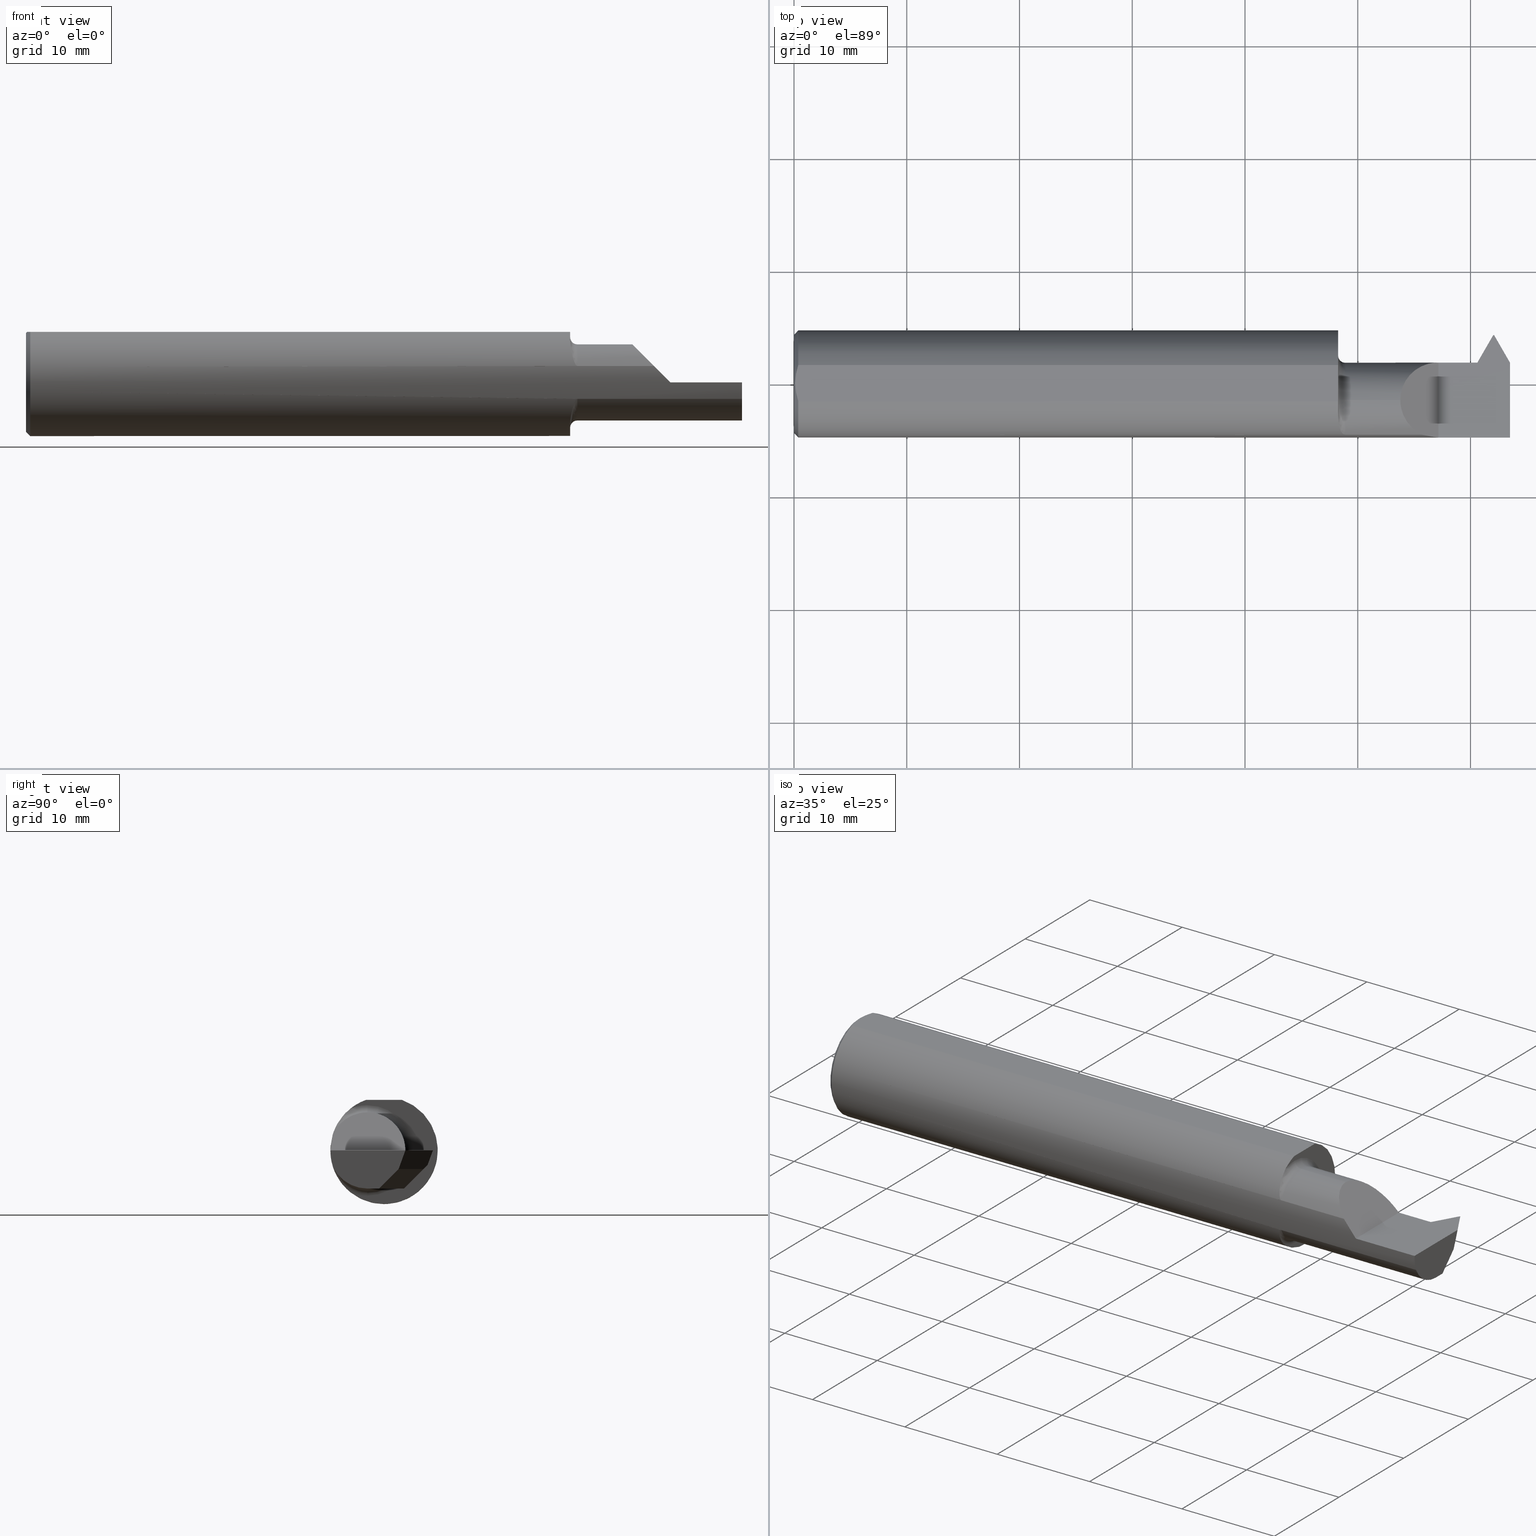
[diagram: canonical four-view strip — front | top / right | iso, engineering-drawing reading convention]
A machine part, canonical four-view strip (front | top / right | iso — engineering-drawing reading convention). The complete STEP part file that produces these views, byte-faithful:
ISO-10303-21;
HEADER;
FILE_DESCRIPTION (( 'STEP AP203' ),
    '1' );
FILE_NAME ('230424-TT360500.STEP',
    '2025-04-22T22:24:32',
    ( '' ),
    ( '' ),
    'SwSTEP 2.0',
    'SolidWorks 2024',
    '' );
FILE_SCHEMA (( 'CONFIG_CONTROL_DESIGN' ));
ENDSEC;

DATA;
#1 = PRODUCT_DEFINITION_SHAPE ( 'NONE', 'NONE',  #466 ) ;
#2 = DIRECTION ( 'NONE',  ( -1.000000000000000000, -0.000000000000000000, -0.000000000000000000 ) ) ;
#3 = AXIS2_PLACEMENT_3D ( 'NONE', #534, #743, #31 ) ;
#4 = CARTESIAN_POINT ( 'NONE',  ( 0.000000000000000000, 0.000000000000000000, 0.000000000000000000 ) ) ;
#5 = AXIS2_PLACEMENT_3D ( 'NONE', #4, #72, #299 ) ;
#6 = ORIENTED_EDGE ( 'NONE', *, *, #145, .F. ) ;
#7 = DIRECTION ( 'NONE',  ( 1.000000000000000000, 0.000000000000000000, -0.000000000000000000 ) ) ;
#8 = CALENDAR_DATE ( 2025, 22, 4 ) ;
#9 = CARTESIAN_POINT ( 'NONE',  ( 0.01500000000000093273, 0.000000000000000000, 0.000000000000000000 ) ) ;
#10 = ORIENTED_EDGE ( 'NONE', *, *, #554, .T. ) ;
#11 = DIRECTION ( 'NONE',  ( 0.000000000000000000, -0.9396926207859104263, 0.3420201433256633283 ) ) ;
#12 = ADVANCED_FACE ( 'NONE', ( #874 ), #49, .T. ) ;
#13 = APPLICATION_CONTEXT ( 'configuration controlled 3d designs of mechanical parts and assemblies' ) ;
#14 = CARTESIAN_POINT ( 'NONE',  ( 1.900000000000000133, 0.06622740117003671212, -0.04657758170750957855 ) ) ;
#15 =( BOUNDED_CURVE ( )  B_SPLINE_CURVE ( 3, ( #556, #895, #125, #472 ),
 .UNSPECIFIED., .F., .T. ) 
 B_SPLINE_CURVE_WITH_KNOTS ( ( 4, 4 ),
 ( 1.213003830136074379, 1.570796326794912545 ),
 .UNSPECIFIED. ) 
 CURVE ( )  GEOMETRIC_REPRESENTATION_ITEM ( )  RATIONAL_B_SPLINE_CURVE ( ( 1.000000000000000000, 0.9893604650975271753, 0.9893604650975271753, 1.000000000000000000 ) ) 
 REPRESENTATION_ITEM ( '' )  );
#16 = ORIENTED_EDGE ( 'NONE', *, *, #153, .T. ) ;
#17 = ORIENTED_EDGE ( 'NONE', *, *, #898, .F. ) ;
#18 = DIRECTION ( 'NONE',  ( 0.000000000000000000, 0.000000000000000000, 1.000000000000000000 ) ) ;
#19 = AXIS2_PLACEMENT_3D ( 'NONE', #620, #899, #191 ) ;
#20 = DATE_AND_TIME ( #775, #827 ) ;
#21 = DIRECTION ( 'NONE',  ( 1.000000000000000000, 0.000000000000000000, 0.000000000000000000 ) ) ;
#22 = EDGE_CURVE ( 'NONE', #57, #773, #842, .T. ) ;
#23 = VECTOR ( 'NONE', #64, 39.37007874015748143 ) ;
#24 = ORIENTED_EDGE ( 'NONE', *, *, #636, .T. ) ;
#25 = ORIENTED_EDGE ( 'NONE', *, *, #96, .T. ) ;
#26 = DIRECTION ( 'NONE',  ( 0.000000000000000000, 0.000000000000000000, 1.000000000000000000 ) ) ;
#27 = DIRECTION ( 'NONE',  ( 1.000000000000000000, -0.000000000000000000, -0.000000000000000000 ) ) ;
#28 = VERTEX_POINT ( 'NONE', #815 ) ;
#29 = ORIENTED_EDGE ( 'NONE', *, *, #621, .F. ) ;
#30 = PLANE ( 'NONE',  #228 ) ;
#31 = DIRECTION ( 'NONE',  ( 0.4999999999999942268, 0.8660254037844419273, 0.000000000000000000 ) ) ;
#32 = ORIENTED_EDGE ( 'NONE', *, *, #883, .T. ) ;
#33 = LINE ( 'NONE', #40, #595 ) ;
#34 = CARTESIAN_POINT ( 'NONE',  ( 1.912861924135776270, -0.1712588160411981919, 0.07610809679489820290 ) ) ;
#35 = AXIS2_PLACEMENT_3D ( 'NONE', #322, #251, #592 ) ;
#36 = LOCAL_TIME ( 15, 24, 32.00000000000000000, #367 ) ;
#37 = EDGE_LOOP ( 'NONE', ( #881, #495, #284, #307, #370, #807, #801, #868 ) ) ;
#38 = EDGE_CURVE ( 'NONE', #373, #599, #238, .T. ) ;
#39 = DIMENSIONAL_EXPONENTS ( 1.000000000000000000, 0.000000000000000000, 0.000000000000000000, 0.000000000000000000, 0.000000000000000000, 0.000000000000000000, 0.000000000000000000 ) ;
#40 = CARTESIAN_POINT ( 'NONE',  ( 2.376520281605562168, 0.07464999999999995250, 0.000000000000000000 ) ) ;
#41 = CARTESIAN_POINT ( 'NONE',  ( 2.401951558677191567, -0.05835000000000021420, -0.1330000000000001181 ) ) ;
#42 = EDGE_CURVE ( 'NONE', #242, #57, #150, .T. ) ;
#43 = LINE ( 'NONE', #175, #624 ) ;
#44 = CARTESIAN_POINT ( 'NONE',  ( 1.908844572613993984, -0.1652240583779467920, 0.08882027308793423448 ) ) ;
#45 = DIRECTION ( 'NONE',  ( -0.000000000000000000, 1.000000000000000000, 1.224646799147353207E-16 ) ) ;
#46 = CARTESIAN_POINT ( 'NONE',  ( 1.914331470962521431, -0.1730809661842622749, -0.07185561948439703195 ) ) ;
#47 = EDGE_LOOP ( 'NONE', ( #267, #831, #24, #578, #897, #174 ) ) ;
#48 = ADVANCED_FACE ( 'NONE', ( #180 ), #602, .F. ) ;
#49 = CONICAL_SURFACE ( 'NONE', #563, 0.1723499999999993371, 0.7853981633974391752 ) ;
#50 = CIRCLE ( 'NONE', #812, 0.1873499999999999888 ) ;
#51 = DIRECTION ( 'NONE',  ( 0.000000000000000000, 0.000000000000000000, 1.000000000000000000 ) ) ;
#52 = DIRECTION ( 'NONE',  ( 0.000000000000000000, 0.000000000000000000, 1.000000000000000000 ) ) ;
#53 = ORIENTED_EDGE ( 'NONE', *, *, #164, .F. ) ;
#54 = CARTESIAN_POINT ( 'NONE',  ( 2.153260140802780942, -0.1783697086546692234, 0.05730854678360303156 ) ) ;
#55 =( LENGTH_UNIT ( ) NAMED_UNIT ( * ) SI_UNIT ( $, .METRE. ) );
#56 = DIRECTION ( 'NONE',  ( -1.000000000000000000, -0.000000000000000000, -0.000000000000000000 ) ) ;
#57 = VERTEX_POINT ( 'NONE', #884 ) ;
#58 = DIRECTION ( 'NONE',  ( 0.001253963230750226518, 0.3420198744252536116, 0.9396918819881066032 ) ) ;
#59 = CARTESIAN_POINT ( 'NONE',  ( 2.444496156148153077, 0.1716984148925982945, 0.002880496243633760920 ) ) ;
#60 = FACE_OUTER_BOUND ( 'NONE', #846, .T. ) ;
#61 = ORIENTED_EDGE ( 'NONE', *, *, #912, .F. ) ;
#62 = AXIS2_PLACEMENT_3D ( 'NONE', #537, #766, #192 ) ;
#63 = AXIS2_PLACEMENT_3D ( 'NONE', #462, #394, #516 ) ;
#64 = DIRECTION ( 'NONE',  ( 1.000000000000000000, 0.000000000000000000, 0.000000000000000000 ) ) ;
#65 = EDGE_CURVE ( 'NONE', #392, #442, #748, .T. ) ;
#66 = CC_DESIGN_SECURITY_CLASSIFICATION ( #461, ( #341 ) ) ;
#67 = CARTESIAN_POINT ( 'NONE',  ( 1.899999999999999023, -0.1312984737625748632, -0.1350514632126308956 ) ) ;
#68 = CARTESIAN_POINT ( 'NONE',  ( 0.01155164730757385523, 0.05303705098182950189, 0.1763499999999999235 ) ) ;
#69 = EDGE_LOOP ( 'NONE', ( #564, #555 ) ) ;
#70 = CARTESIAN_POINT ( 'NONE',  ( 2.286169466321152477, -0.2688355267852827191, -0.4712870150719772888 ) ) ;
#71 = APPLICATION_PROTOCOL_DEFINITION ( 'international standard', 'config_control_design', 1994, #13 ) ;
#72 = DIRECTION ( 'NONE',  ( 1.000000000000000000, 0.000000000000000000, 0.000000000000000000 ) ) ;
#73 = EDGE_LOOP ( 'NONE', ( #480, #16, #591, #25 ) ) ;
#74 = DIRECTION ( 'NONE',  ( -1.000000000000000000, -0.000000000000000000, -0.000000000000000000 ) ) ;
#75 = DATE_TIME_ROLE ( 'creation_date' ) ;
#76 = DIRECTION ( 'NONE',  ( -1.000000000000000000, 0.000000000000000000, 3.673940397442056910E-16 ) ) ;
#77 = VERTEX_POINT ( 'NONE', #752 ) ;
#78 = EDGE_CURVE ( 'NONE', #442, #317, #391, .T. ) ;
#79 = FACE_OUTER_BOUND ( 'NONE', #437, .T. ) ;
#80 = AXIS2_PLACEMENT_3D ( 'NONE', #295, #780, #304 ) ;
#81 = DATE_AND_TIME ( #858, #187 ) ;
#82 = DIRECTION ( 'NONE',  ( -1.000000000000000000, -0.000000000000000000, -0.000000000000000000 ) ) ;
#83 = AXIS2_PLACEMENT_3D ( 'NONE', #195, #190, #686 ) ;
#84 = ORIENTED_EDGE ( 'NONE', *, *, #298, .T. ) ;
#85 = CC_DESIGN_PERSON_AND_ORGANIZATION_ASSIGNMENT ( #429, #219, ( #341 ) ) ;
#86 = PLANE ( 'NONE',  #158 ) ;
#87 = CARTESIAN_POINT ( 'NONE',  ( 1.899999999999999911, -0.05835000000000021420, 0.000000000000000000 ) ) ;
#88 = ORIENTED_EDGE ( 'NONE', *, *, #590, .F. ) ;
#89 = PRODUCT ( '230424-TT360500', '230424-TT360500', '', ( #833 ) ) ;
#90 = VERTEX_POINT ( 'NONE', #528 ) ;
#91 = PLANE ( 'NONE',  #619 ) ;
#92 = FACE_OUTER_BOUND ( 'NONE', #232, .T. ) ;
#93 = VERTEX_POINT ( 'NONE', #41 ) ;
#94 = ORIENTED_EDGE ( 'NONE', *, *, #164, .T. ) ;
#95 = CARTESIAN_POINT ( 'NONE',  ( 1.920126530293609468, -0.1772957297413640665, -0.06055838166122240462 ) ) ;
#96 = EDGE_CURVE ( 'NONE', #593, #631, #452, .T. ) ;
#97 = LINE ( 'NONE', #737, #198 ) ;
#98 = CONICAL_SURFACE ( 'NONE', #5, 0.1723499999999993371, 0.7853981633974391752 ) ;
#99 = VERTEX_POINT ( 'NONE', #677 ) ;
#100 = UNCERTAINTY_MEASURE_WITH_UNIT (LENGTH_MEASURE( 1.000000000000000082E-05 ), #683, 'distance_accuracy_value', 'NONE');
#101 = ORIENTED_EDGE ( 'NONE', *, *, #918, .T. ) ;
#102 = LINE ( 'NONE', #601, #505 ) ;
#103 = ORIENTED_EDGE ( 'NONE', *, *, #244, .F. ) ;
#104 = ORIENTED_EDGE ( 'NONE', *, *, #244, .T. ) ;
#105 = PLANE ( 'NONE',  #343 ) ;
#106 = CARTESIAN_POINT ( 'NONE',  ( 2.145120520002822495, -0.1556549305389025584, 0.1048794799971762975 ) ) ;
#107 = EDGE_CURVE ( 'NONE', #369, #373, #351, .T. ) ;
#108 = ORIENTED_EDGE ( 'NONE', *, *, #473, .T. ) ;
#109 = PLANE ( 'NONE',  #319 ) ;
#110 = AXIS2_PLACEMENT_3D ( 'NONE', #787, #2, #782 ) ;
#111 = CARTESIAN_POINT ( 'NONE',  ( 2.443000000000000504, 0.1497402467415668015, -0.06499999999999907241 ) ) ;
#112 = AXIS2_PLACEMENT_3D ( 'NONE', #332, #763, #623 ) ;
#113 = AXIS2_PLACEMENT_3D ( 'NONE', #507, #144, #708 ) ;
#114 = PRODUCT_RELATED_PRODUCT_CATEGORY ( 'detail', '', ( #89 ) ) ;
#115 = ORIENTED_EDGE ( 'NONE', *, *, #811, .F. ) ;
#116 = DIRECTION ( 'NONE',  ( 0.000000000000000000, -0.7071067811865439090, -0.7071067811865511255 ) ) ;
#117 = ORIENTED_EDGE ( 'NONE', *, *, #586, .T. ) ;
#118 = CARTESIAN_POINT ( 'NONE',  ( 0.01500000000000093273, 0.06325108694718235836, 0.1763499999999999235 ) ) ;
#119 = EDGE_CURVE ( 'NONE', #93, #348, #581, .T. ) ;
#120 = DIRECTION ( 'NONE',  ( 0.000000000000000000, 0.3401001459858907228, 0.9403892229818331394 ) ) ;
#121 = CARTESIAN_POINT ( 'NONE',  ( 1.900000000000000133, 0.07464999999999995250, 2.204364238465232864E-16 ) ) ;
#122 = ADVANCED_FACE ( 'NONE', ( #630 ), #558, .T. ) ;
#123 = DIRECTION ( 'NONE',  ( -0.4999999999999904521, 0.8660254037844440367, 0.000000000000000000 ) ) ;
#124 = AXIS2_PLACEMENT_3D ( 'NONE', #499, #648, #494 ) ;
#125 = CARTESIAN_POINT ( 'NONE',  ( 2.373636533987726782, 0.07464999999999996638, -0.01594733324062902816 ) ) ;
#126 = CARTESIAN_POINT ( 'NONE',  ( 1.899999999999999911, -0.1160303770351322067, -0.1470951192429071075 ) ) ;
#127 = CARTESIAN_POINT ( 'NONE',  ( 2.441433277957658632, 0.1524514882866901677, -0.05000000000000000971 ) ) ;
#128 = EDGE_LOOP ( 'NONE', ( #460, #131, #10, #500 ) ) ;
#129 = FACE_OUTER_BOUND ( 'NONE', #293, .T. ) ;
#130 = DIRECTION ( 'NONE',  ( -1.000000000000000000, -0.000000000000000000, -0.000000000000000000 ) ) ;
#131 = ORIENTED_EDGE ( 'NONE', *, *, #600, .T. ) ;
#132 = ADVANCED_FACE ( 'NONE', ( #838 ), #211, .F. ) ;
#133 = LINE ( 'NONE', #413, #506 ) ;
#134 = LINE ( 'NONE', #59, #876 ) ;
#135 = DIRECTION ( 'NONE',  ( -1.000000000000000000, -0.000000000000000000, -0.000000000000000000 ) ) ;
#136 = ORIENTED_EDGE ( 'NONE', *, *, #393, .F. ) ;
#137 = AXIS2_PLACEMENT_3D ( 'NONE', #637, #18, #7 ) ;
#138 = VECTOR ( 'NONE', #869, 39.37007874015748143 ) ;
#139 = DIRECTION ( 'NONE',  ( 0.4999999999999942268, 0.8660254037844419273, -0.000000000000000000 ) ) ;
#140 = PERSON_AND_ORGANIZATION ( #268, #261 ) ;
#141 = FACE_BOUND ( 'NONE', #69, .T. ) ;
#142 = ORIENTED_EDGE ( 'NONE', *, *, #119, .T. ) ;
#143 = DESIGN_CONTEXT ( 'detailed design', #13, 'design' ) ;
#144 = DIRECTION ( 'NONE',  ( -0.7745966692414905097, 0.4472135954999516549, -0.4472135954999520435 ) ) ;
#145 = EDGE_CURVE ( 'NONE', #599, #773, #422, .T. ) ;
#146 = DATE_AND_TIME ( #837, #36 ) ;
#147 = DIRECTION ( 'NONE',  ( 0.000000000000000000, 0.000000000000000000, -1.000000000000000000 ) ) ;
#148 = ORIENTED_EDGE ( 'NONE', *, *, #65, .T. ) ;
#149 = PLANE ( 'NONE',  #137 ) ;
#150 = B_SPLINE_CURVE_WITH_KNOTS ( 'NONE', 3,
 ( #458, #803, #674, #455, #325, #669, #44, #34, #241, #739, #258, #598, #252, #173, #806, #604 ),
 .UNSPECIFIED., .F., .F.,
 ( 4, 2, 2, 2, 2, 2, 2, 4 ),
 ( 0.0004765446698425022357, 0.001211022660623638442, 0.001945500651404774703, 0.002679978642185911180, 0.003047217637576483430, 0.003230837135271765002, 0.003322646884119405571, 0.003414456632967046140 ),
 .UNSPECIFIED. ) ;
#151 = APPROVAL_DATE_TIME ( #20, #871 ) ;
#152 = CARTESIAN_POINT ( 'NONE',  ( 1.899999999999999911, 0.000000000000000000, 0.000000000000000000 ) ) ;
#153 = EDGE_CURVE ( 'NONE', #839, #216, #487, .T. ) ;
#154 = EDGE_LOOP ( 'NONE', ( #504, #104 ) ) ;
#155 = CARTESIAN_POINT ( 'NONE',  ( 1.924999999999999822, -0.05835000000000021420, 0.1330000000000002014 ) ) ;
#156 = APPROVAL_STATUS ( 'not_yet_approved' ) ;
#157 = CARTESIAN_POINT ( 'NONE',  ( 2.435905081998071875, 0.1524514882866980503, -0.04999999999999214795 ) ) ;
#158 = AXIS2_PLACEMENT_3D ( 'NONE', #366, #11, #309 ) ;
#159 = ORIENTED_EDGE ( 'NONE', *, *, #689, .T. ) ;
#160 = DIRECTION ( 'NONE',  ( 0.2521791579305265874, 0.6842534882283906050, 0.6842534882283977105 ) ) ;
#161 = PERSON_AND_ORGANIZATION_ROLE ( 'classification_officer' ) ;
#162 = CARTESIAN_POINT ( 'NONE',  ( 2.500000000000000000, -0.2500000000000000555, 0.000000000000000000 ) ) ;
#163 = ORIENTED_EDGE ( 'NONE', *, *, #107, .F. ) ;
#164 = EDGE_CURVE ( 'NONE', #237, #667, #911, .T. ) ;
#165 = ORIENTED_EDGE ( 'NONE', *, *, #22, .T. ) ;
#166 = CYLINDRICAL_SURFACE ( 'NONE', #275, 0.1330000000000001736 ) ;
#167 = LINE ( 'NONE', #865, #731 ) ;
#168 = ORIENTED_EDGE ( 'NONE', *, *, #338, .F. ) ;
#169 = ORIENTED_EDGE ( 'NONE', *, *, #188, .T. ) ;
#170 = ADVANCED_FACE ( 'NONE', ( #347 ), #546, .F. ) ;
#171 = LINE ( 'NONE', #451, #418 ) ;
#172 = VECTOR ( 'NONE', #771, 39.37007874015748143 ) ;
#173 = CARTESIAN_POINT ( 'NONE',  ( 1.922655856876672065, -0.1781552959228000221, 0.05797775639604801912 ) ) ;
#174 = ORIENTED_EDGE ( 'NONE', *, *, #306, .T. ) ;
#175 = CARTESIAN_POINT ( 'NONE',  ( 2.402011550668813555, -0.06163162860215950362, -0.1330000000000000626 ) ) ;
#176 = ADVANCED_FACE ( 'NONE', ( #141, #201 ), #471, .T. ) ;
#177 = DIRECTION ( 'NONE',  ( 1.000000000000000000, 0.000000000000000000, 0.000000000000000000 ) ) ;
#178 = ORIENTED_EDGE ( 'NONE', *, *, #432, .F. ) ;
#179 = DIRECTION ( 'NONE',  ( -1.000000000000000000, -0.000000000000000000, -0.000000000000000000 ) ) ;
#180 = FACE_OUTER_BOUND ( 'NONE', #207, .T. ) ;
#181 = EDGE_CURVE ( 'NONE', #712, #417, #754, .T. ) ;
#182 = EDGE_LOOP ( 'NONE', ( #732, #302, #635, #6, #117, #675, #670, #136 ) ) ;
#183 = DIRECTION ( 'NONE',  ( 0.1005834662396463408, 0.000000000000000000, -0.9949286237309779013 ) ) ;
#184 = AXIS2_PLACEMENT_3D ( 'NONE', #906, #278, #612 ) ;
#185 = CARTESIAN_POINT ( 'NONE',  ( 2.392860499994019730, 0.06289608526510648279, -0.06499999999999907241 ) ) ;
#186 = CIRCLE ( 'NONE', #124, 0.1723499999999993371 ) ;
#187 = LOCAL_TIME ( 15, 24, 32.00000000000000000, #853 ) ;
#188 = EDGE_CURVE ( 'NONE', #369, #701, #266, .T. ) ;
#189 = DIRECTION ( 'NONE',  ( 1.000000000000000000, 0.000000000000000000, 0.000000000000000000 ) ) ;
#190 = DIRECTION ( 'NONE',  ( 1.000000000000000000, 0.000000000000000000, 0.000000000000000000 ) ) ;
#191 = DIRECTION ( 'NONE',  ( 0.000000000000000000, 0.000000000000000000, -1.000000000000000000 ) ) ;
#192 = DIRECTION ( 'NONE',  ( 0.000000000000000000, 0.000000000000000000, 1.000000000000000000 ) ) ;
#193 = DIRECTION ( 'NONE',  ( 0.000000000000000000, 0.000000000000000000, 1.000000000000000000 ) ) ;
#194 = CARTESIAN_POINT ( 'NONE',  ( 2.500000000000000000, 0.000000000000000000, 0.000000000000000000 ) ) ;
#195 = CARTESIAN_POINT ( 'NONE',  ( 2.500000000000000000, -0.05835000000000021420, 0.000000000000000000 ) ) ;
#196 = CARTESIAN_POINT ( 'NONE',  ( 0.004000000000000582083, 2.550090563692220756E-17, 0.1763499999999999235 ) ) ;
#197 = EDGE_LOOP ( 'NONE', ( #824, #785, #61, #225, #594 ) ) ;
#198 = VECTOR ( 'NONE', #660, 39.37007874015748143 ) ;
#199 = APPROVAL_PERSON_ORGANIZATION ( #350, #887, #709 ) ;
#200 = LINE ( 'NONE', #818, #891 ) ;
#201 = FACE_OUTER_BOUND ( 'NONE', #182, .T. ) ;
#202 = EDGE_CURVE ( 'NONE', #221, #773, #303, .T. ) ;
#203 = VERTEX_POINT ( 'NONE', #613 ) ;
#204 = CARTESIAN_POINT ( 'NONE',  ( 0.01500000000000093273, -0.06325108694718235836, 0.1763499999999999235 ) ) ;
#205 = CARTESIAN_POINT ( 'NONE',  ( 1.917141984682262823, -0.1755174329696185531, -0.06556455082928973332 ) ) ;
#206 = CARTESIAN_POINT ( 'NONE',  ( 2.400729010473273917, 0.008524745195061259051, -0.1330000000000003402 ) ) ;
#207 = EDGE_LOOP ( 'NONE', ( #781, #730, #870, #835, #29, #427 ) ) ;
#208 = EDGE_CURVE ( 'NONE', #242, #221, #671, .T. ) ;
#209 = CARTESIAN_POINT ( 'NONE',  ( 2.441500000000000004, 0.1706500000000000239, 0.000000000000000000 ) ) ;
#210 = APPROVAL_DATE_TIME ( #356, #438 ) ;
#211 = PLANE ( 'NONE',  #377 ) ;
#212 = ORIENTED_EDGE ( 'NONE', *, *, #421, .F. ) ;
#213 = CIRCLE ( 'NONE', #80, 0.1330000000000001736 ) ;
#214 = CARTESIAN_POINT ( 'NONE',  ( 2.392860499994019730, 0.02163535140251696479, -0.1062607338625885661 ) ) ;
#215 = CARTESIAN_POINT ( 'NONE',  ( 2.392860499994019730, 0.06289608526510648279, -0.06499999999999907241 ) ) ;
#216 = VERTEX_POINT ( 'NONE', #206 ) ;
#217 = FACE_OUTER_BOUND ( 'NONE', #73, .T. ) ;
#218 = ADVANCED_FACE ( 'NONE', ( #60 ), #538, .T. ) ;
#219 = PERSON_AND_ORGANIZATION_ROLE ( 'creator' ) ;
#220 = CARTESIAN_POINT ( 'NONE',  ( 2.250000000000000000, -0.1873499999999999888, 9.184850993605143507E-17 ) ) ;
#221 = VERTEX_POINT ( 'NONE', #767 ) ;
#222 = CARTESIAN_POINT ( 'NONE',  ( 0.004000000000000543052, -0.01077599264701415219, 0.1763499999999999235 ) ) ;
#223 = COORDINATED_UNIVERSAL_TIME_OFFSET ( 8, 0, .BEHIND. ) ;
#224 = CARTESIAN_POINT ( 'NONE',  ( 2.581520281605562683, -0.05835000000000004766, -0.1330000000000000626 ) ) ;
#225 = ORIENTED_EDGE ( 'NONE', *, *, #338, .T. ) ;
#226 = VECTOR ( 'NONE', #910, 39.37007874015748143 ) ;
#227 = CARTESIAN_POINT ( 'NONE',  ( 2.500000000000000000, -0.1873499999999999888, 0.000000000000000000 ) ) ;
#228 = AXIS2_PLACEMENT_3D ( 'NONE', #457, #189, #597 ) ;
#229 = APPROVAL_ROLE ( '' ) ;
#230 = CARTESIAN_POINT ( 'NONE',  ( 2.386074374157796996, 0.07464999999999995250, 0.000000000000000000 ) ) ;
#231 = VECTOR ( 'NONE', #269, 39.37007874015748143 ) ;
#232 = EDGE_LOOP ( 'NONE', ( #614, #115 ) ) ;
#233 = EDGE_CURVE ( 'NONE', #448, #667, #553, .T. ) ;
#234 = VERTEX_POINT ( 'NONE', #127 ) ;
#235 = CARTESIAN_POINT ( 'NONE',  ( 1.920855552425395629, -0.1776175334603398159, -0.05960499283470922088 ) ) ;
#236 = DIRECTION ( 'NONE',  ( -0.1021978390768677192, 0.1770118497048815687, 0.9788883525469465052 ) ) ;
#237 = VERTEX_POINT ( 'NONE', #406 ) ;
#238 =( BOUNDED_CURVE ( )  B_SPLINE_CURVE ( 3, ( #879, #106, #799, #386 ),
 .UNSPECIFIED., .F., .F. ) 
 B_SPLINE_CURVE_WITH_KNOTS ( ( 4, 4 ),
 ( 5.157869252308511676, 6.283185307179586232 ),
 .UNSPECIFIED. ) 
 CURVE ( )  GEOMETRIC_REPRESENTATION_ITEM ( )  RATIONAL_B_SPLINE_CURVE ( ( 1.000000000000000000, 0.8972268081433718567, 0.8972268081433718567, 1.000000000000000000 ) ) 
 REPRESENTATION_ITEM ( '' )  );
#239 = ORIENTED_EDGE ( 'NONE', *, *, #145, .T. ) ;
#240 = FACE_OUTER_BOUND ( 'NONE', #358, .T. ) ;
#241 = CARTESIAN_POINT ( 'NONE',  ( 1.914343418362562943, -0.1730952584121424886, 0.07182162584496383506 ) ) ;
#242 = VERTEX_POINT ( 'NONE', #687 ) ;
#243 = MANIFOLD_SOLID_BREP ( 'Cut-Sweep1', #889 ) ;
#244 = EDGE_CURVE ( 'NONE', #203, #582, #186, .T. ) ;
#245 = CYLINDRICAL_SURFACE ( 'NONE', #63, 0.1873499999999999888 ) ;
#246 = AXIS2_PLACEMENT_3D ( 'NONE', #215, #776, #854 ) ;
#247 = VECTOR ( 'NONE', #323, 39.37007874015748854 ) ;
#248 = CARTESIAN_POINT ( 'NONE',  ( 1.924999999999999822, -0.05835000000000021420, 0.000000000000000000 ) ) ;
#249 = EDGE_LOOP ( 'NONE', ( #706, #212 ) ) ;
#250 = CC_DESIGN_PERSON_AND_ORGANIZATION_ASSIGNMENT ( #647, #161, ( #461 ) ) ;
#251 = DIRECTION ( 'NONE',  ( 1.000000000000000000, 0.000000000000000000, 0.000000000000000000 ) ) ;
#252 = CARTESIAN_POINT ( 'NONE',  ( 1.920882408083212312, -0.1776276410483813295, 0.05957475000071229404 ) ) ;
#253 = ORIENTED_EDGE ( 'NONE', *, *, #734, .T. ) ;
#254 = CARTESIAN_POINT ( 'NONE',  ( 2.444500000000000117, 0.1706500000000000239, 0.000000000000000000 ) ) ;
#255 = ORIENTED_EDGE ( 'NONE', *, *, #586, .F. ) ;
#256 = CARTESIAN_POINT ( 'NONE',  ( 2.403041904254465067, -2.304124319519293529, 0.2623169197180995060 ) ) ;
#257 = AXIS2_PLACEMENT_3D ( 'NONE', #424, #702, #492 ) ;
#258 = CARTESIAN_POINT ( 'NONE',  ( 1.918195961774044278, -0.1762973784583231618, 0.06343092843761441446 ) ) ;
#259 = VECTOR ( 'NONE', #123, 39.37007874015748854 ) ;
#260 = EDGE_CURVE ( 'NONE', #618, #688, #890, .T. ) ;
#261 = ORGANIZATION ( 'UNSPECIFIED', 'UNSPECIFIED', '' ) ;
#262 = CARTESIAN_POINT ( 'NONE',  ( 2.376520281605562168, 0.07464999999999995250, 0.000000000000000000 ) ) ;
#263 = DIRECTION ( 'NONE',  ( -1.000000000000000000, 0.000000000000000000, -0.000000000000000000 ) ) ;
#264 = FACE_OUTER_BOUND ( 'NONE', #154, .T. ) ;
#265 = PERSON_AND_ORGANIZATION ( #268, #261 ) ;
#266 = LINE ( 'NONE', #692, #800 ) ;
#267 = ORIENTED_EDGE ( 'NONE', *, *, #277, .T. ) ;
#268 = PERSON ( 'UNSPECIFIED', 'UNSPECIFIED', 'UNSPECIFIED', ('UNSPECIFIED'), ('UNSPECIFIED'), ('UNSPECIFIED') ) ;
#269 = DIRECTION ( 'NONE',  ( 1.000000000000000000, 0.000000000000000000, 0.000000000000000000 ) ) ;
#270 = EDGE_CURVE ( 'NONE', #543, #855, #213, .T. ) ;
#271 = CARTESIAN_POINT ( 'NONE',  ( 1.899999999999999911, -0.06325108694718235836, 0.1763499999999999235 ) ) ;
#272 = CARTESIAN_POINT ( 'NONE',  ( 0.000000000000000000, 0.06325108694718235836, 0.1763499999999999235 ) ) ;
#273 = ORIENTED_EDGE ( 'NONE', *, *, #791, .T. ) ;
#274 = AXIS2_PLACEMENT_3D ( 'NONE', #483, #819, #759 ) ;
#275 = AXIS2_PLACEMENT_3D ( 'NONE', #793, #376, #26 ) ;
#276 = DIRECTION ( 'NONE',  ( 0.4999999999999948375, -0.8660254037844417052, 0.000000000000000000 ) ) ;
#277 = EDGE_CURVE ( 'NONE', #886, #237, #50, .T. ) ;
#278 = DIRECTION ( 'NONE',  ( 0.000000000000000000, 0.000000000000000000, 1.000000000000000000 ) ) ;
#279 = CARTESIAN_POINT ( 'NONE',  ( 1.900000000000000133, -0.05835000000000021420, 0.000000000000000000 ) ) ;
#280 = ORIENTED_EDGE ( 'NONE', *, *, #260, .T. ) ;
#281 = DIRECTION ( 'NONE',  ( -0.9840406976462907629, 2.800260005780207365E-15, 0.1779435454738421685 ) ) ;
#282 = CARTESIAN_POINT ( 'NONE',  ( -3.937007874019685528E-05, 0.1524514882866901955, -0.05000000000000000278 ) ) ;
#283 = CARTESIAN_POINT ( 'NONE',  ( 2.401951558677191567, -0.05835000000000021420, -0.1330000000000001181 ) ) ;
#284 = ORIENTED_EDGE ( 'NONE', *, *, #610, .F. ) ;
#285 = ADVANCED_FACE ( 'NONE', ( #357 ), #98, .T. ) ;
#286 = FACE_OUTER_BOUND ( 'NONE', #407, .T. ) ;
#287 = CARTESIAN_POINT ( 'NONE',  ( 2.153260140802780942, -0.1783697086546692234, -0.05730854678360303156 ) ) ;
#288 = ORIENTED_EDGE ( 'NONE', *, *, #233, .T. ) ;
#289 = EDGE_CURVE ( 'NONE', #348, #337, #167, .T. ) ;
#290 = VECTOR ( 'NONE', #907, 39.37007874015748143 ) ;
#291 = CARTESIAN_POINT ( 'NONE',  ( 2.289103641135900258, 0.5742791931371846736, 0.3718277048504986526 ) ) ;
#292 = DIRECTION ( 'NONE',  ( -1.000000000000000000, -0.000000000000000000, -0.000000000000000000 ) ) ;
#293 = EDGE_LOOP ( 'NONE', ( #559, #587, #447, #768 ) ) ;
#294 = CARTESIAN_POINT ( 'NONE',  ( 2.500000000000000000, -0.1783697086546688626, -0.05730854678360295523 ) ) ;
#295 = CARTESIAN_POINT ( 'NONE',  ( 2.392860499994019730, -0.05835000000000021420, 0.000000000000000000 ) ) ;
#296 = ORIENTED_EDGE ( 'NONE', *, *, #208, .F. ) ;
#297 = LINE ( 'NONE', #70, #320 ) ;
#298 = EDGE_CURVE ( 'NONE', #618, #908, #639, .T. ) ;
#299 = DIRECTION ( 'NONE',  ( 0.000000000000000000, 0.000000000000000000, -1.000000000000000000 ) ) ;
#300 = ORIENTED_EDGE ( 'NONE', *, *, #396, .F. ) ;
#301 = AXIS2_PLACEMENT_3D ( 'NONE', #262, #281, #469 ) ;
#302 = ORIENTED_EDGE ( 'NONE', *, *, #459, .T. ) ;
#303 = CIRCLE ( 'NONE', #112, 0.02499999999999993894 ) ;
#304 = DIRECTION ( 'NONE',  ( 0.000000000000000000, 1.065523418581454723E-14, -1.000000000000000000 ) ) ;
#305 = AXIS2_PLACEMENT_3D ( 'NONE', #690, #45, #607 ) ;
#306 = EDGE_CURVE ( 'NONE', #28, #886, #641, .T. ) ;
#307 = ORIENTED_EDGE ( 'NONE', *, *, #571, .F. ) ;
#308 = ORIENTED_EDGE ( 'NONE', *, *, #497, .T. ) ;
#309 = DIRECTION ( 'NONE',  ( 0.000000000000000000, -0.3420201433256632728, -0.9396926207859103153 ) ) ;
#310 = LINE ( 'NONE', #588, #138 ) ;
#311 = ORIENTED_EDGE ( 'NONE', *, *, #298, .F. ) ;
#312 = EDGE_CURVE ( 'NONE', #543, #855, #446, .T. ) ;
#313 = ORIENTED_EDGE ( 'NONE', *, *, #491, .T. ) ;
#314 = DIRECTION ( 'NONE',  ( 0.000000000000000000, -0.7071067811865511255, 0.7071067811865439090 ) ) ;
#315 = CARTESIAN_POINT ( 'NONE',  ( 0.000000000000000000, 0.000000000000000000, 0.000000000000000000 ) ) ;
#316 = ADVANCED_FACE ( 'NONE', ( #92 ), #844, .T. ) ;
#317 = VERTEX_POINT ( 'NONE', #794 ) ;
#318 = CARTESIAN_POINT ( 'NONE',  ( 0.000000000000000000, 0.000000000000000000, -0.1723499999999993371 ) ) ;
#319 = AXIS2_PLACEMENT_3D ( 'NONE', #668, #314, #116 ) ;
#320 = VECTOR ( 'NONE', #160, 39.37007874015748854 ) ;
#321 = VERTEX_POINT ( 'NONE', #352 ) ;
#322 = CARTESIAN_POINT ( 'NONE',  ( 0.01500000000000093273, 0.000000000000000000, 0.000000000000000000 ) ) ;
#323 = DIRECTION ( 'NONE',  ( 0.4999999999999912292, 0.8660254037844437036, 0.000000000000000000 ) ) ;
#324 = LINE ( 'NONE', #882, #746 ) ;
#325 = CARTESIAN_POINT ( 'NONE',  ( 1.903482061302896433, -0.1498697720275259659, 0.1128244190103262073 ) ) ;
#326 = PLANE ( 'NONE',  #416 ) ;
#327 = DIRECTION ( 'NONE',  ( 0.000000000000000000, 0.000000000000000000, 1.000000000000000000 ) ) ;
#328 = ADVANCED_FACE ( 'NONE', ( #363 ), #372, .F. ) ;
#329 = VECTOR ( 'NONE', #468, 39.37007874015748854 ) ;
#330 = LINE ( 'NONE', #54, #231 ) ;
#331 =( NAMED_UNIT ( * ) PLANE_ANGLE_UNIT ( ) SI_UNIT ( $, .RADIAN. ) );
#332 = CARTESIAN_POINT ( 'NONE',  ( 1.924999999999999822, -0.05835000000000022807, 0.1580000000000001403 ) ) ;
#333 = ORIENTED_EDGE ( 'NONE', *, *, #852, .F. ) ;
#334 = EDGE_CURVE ( 'NONE', #216, #593, #634, .T. ) ;
#335 = LINE ( 'NONE', #345, #490 ) ;
#336 = DIRECTION ( 'NONE',  ( 0.000000000000000000, 0.000000000000000000, 1.000000000000000000 ) ) ;
#337 = VERTEX_POINT ( 'NONE', #849 ) ;
#338 = EDGE_CURVE ( 'NONE', #736, #663, #916, .T. ) ;
#339 = CARTESIAN_POINT ( 'NONE',  ( 1.900000000000000133, 0.1706499999999999684, 2.204364238465232864E-16 ) ) ;
#340 = CARTESIAN_POINT ( 'NONE',  ( 2.192691453216395914, -0.1783697086546688348, 0.05730854678360401688 ) ) ;
#341 = PRODUCT_DEFINITION_FORMATION_WITH_SPECIFIED_SOURCE ( 'ANY', '', #89, .NOT_KNOWN. ) ;
#342 = ORIENTED_EDGE ( 'NONE', *, *, #821, .T. ) ;
#343 = AXIS2_PLACEMENT_3D ( 'NONE', #256, #808, #183 ) ;
#344 = AXIS2_PLACEMENT_3D ( 'NONE', #616, #691, #482 ) ;
#345 = CARTESIAN_POINT ( 'NONE',  ( 2.386074374157796996, 0.07464999999999995250, 0.000000000000000000 ) ) ;
#346 = CARTESIAN_POINT ( 'NONE',  ( 1.899999999999999911, -0.1160303770351322067, -0.1470951192429071075 ) ) ;
#347 = FACE_OUTER_BOUND ( 'NONE', #569, .T. ) ;
#348 = VERTEX_POINT ( 'NONE', #584 ) ;
#349 = FACE_OUTER_BOUND ( 'NONE', #658, .T. ) ;
#350 = PERSON_AND_ORGANIZATION ( #268, #261 ) ;
#351 =( BOUNDED_CURVE ( )  B_SPLINE_CURVE ( 3, ( #517, #735, #665, #340 ),
 .UNSPECIFIED., .F., .F. ) 
 B_SPLINE_CURVE_WITH_KNOTS ( ( 4, 4 ),
 ( 4.712388980384690562, 5.023262387692875919 ),
 .UNSPECIFIED. ) 
 CURVE ( )  GEOMETRIC_REPRESENTATION_ITEM ( )  RATIONAL_B_SPLINE_CURVE ( ( 1.000000000000000000, 0.9919626788073498957, 0.9919626788073498957, 1.000000000000000000 ) ) 
 REPRESENTATION_ITEM ( '' )  );
#352 = CARTESIAN_POINT ( 'NONE',  ( 1.924999999999999822, -0.05835000000000019338, -0.1330000000000002014 ) ) ;
#353 = ORIENTED_EDGE ( 'NONE', *, *, #202, .F. ) ;
#354 = ORIENTED_EDGE ( 'NONE', *, *, #42, .T. ) ;
#355 = DIRECTION ( 'NONE',  ( 0.000000000000000000, 0.000000000000000000, 1.000000000000000000 ) ) ;
#356 = DATE_AND_TIME ( #8, #390 ) ;
#357 = FACE_OUTER_BOUND ( 'NONE', #382, .T. ) ;
#358 = EDGE_LOOP ( 'NONE', ( #381, #863, #142, #300 ) ) ;
#359 = VECTOR ( 'NONE', #436, 39.37007874015748854 ) ;
#360 = CIRCLE ( 'NONE', #62, 0.1580000000000001403 ) ;
#361 = CARTESIAN_POINT ( 'NONE',  ( 2.250000000000000000, -0.2500000000000000555, 9.184850993605143507E-17 ) ) ;
#362 = SHAPE_DEFINITION_REPRESENTATION ( #1, #632 ) ;
#363 = FACE_OUTER_BOUND ( 'NONE', #37, .T. ) ;
#364 = ORIENTED_EDGE ( 'NONE', *, *, #181, .F. ) ;
#365 = EDGE_CURVE ( 'NONE', #77, #93, #644, .T. ) ;
#366 = CARTESIAN_POINT ( 'NONE',  ( -3.937007874019685528E-05, 0.1706500000000000239, 7.347880794884115299E-17 ) ) ;
#367 = COORDINATED_UNIVERSAL_TIME_OFFSET ( 8, 0, .BEHIND. ) ;
#368 = LINE ( 'NONE', #14, #875 ) ;
#369 = VERTEX_POINT ( 'NONE', #220 ) ;
#370 = ORIENTED_EDGE ( 'NONE', *, *, #188, .F. ) ;
#371 = CARTESIAN_POINT ( 'NONE',  ( 2.394282592563504508, 0.03159656514907391300, -0.09876265669944513104 ) ) ;
#372 = PLANE ( 'NONE',  #656 ) ;
#373 = VERTEX_POINT ( 'NONE', #502 ) ;
#374 = TOROIDAL_SURFACE ( 'NONE', #344, 0.1580000000000001403, 0.02499999999999992853 ) ;
#375 = ORIENTED_EDGE ( 'NONE', *, *, #765, .T. ) ;
#376 = DIRECTION ( 'NONE',  ( -1.000000000000000000, -0.000000000000000000, -0.000000000000000000 ) ) ;
#377 = AXIS2_PLACEMENT_3D ( 'NONE', #552, #193, #415 ) ;
#378 = LINE ( 'NONE', #318, #449 ) ;
#379 = VECTOR ( 'NONE', #397, 39.37007874015748143 ) ;
#380 = EDGE_CURVE ( 'NONE', #631, #839, #710, .T. ) ;
#381 = ORIENTED_EDGE ( 'NONE', *, *, #334, .F. ) ;
#382 = EDGE_LOOP ( 'NONE', ( #877, #88, #741, #423, #342 ) ) ;
#383 = DIRECTION ( 'NONE',  ( 0.000000000000000000, -1.000000000000000000, 0.000000000000000000 ) ) ;
#384 = DIRECTION ( 'NONE',  ( -1.000000000000000000, -0.000000000000000000, -0.000000000000000000 ) ) ;
#385 = ORIENTED_EDGE ( 'NONE', *, *, #202, .T. ) ;
#386 = CARTESIAN_POINT ( 'NONE',  ( 2.116999999999998661, -0.05835000000000021420, 0.1330000000000001736 ) ) ;
#387 = ORIENTED_EDGE ( 'NONE', *, *, #107, .T. ) ;
#388 = CARTESIAN_POINT ( 'NONE',  ( 1.900000000000000133, -0.05835000000000019338, -0.1330000000000001736 ) ) ;
#389 = VECTOR ( 'NONE', #715, 39.37007874015748143 ) ;
#390 = LOCAL_TIME ( 15, 24, 32.00000000000000000, #223 ) ;
#391 = LINE ( 'NONE', #680, #845 ) ;
#392 = VERTEX_POINT ( 'NONE', #720 ) ;
#393 = EDGE_CURVE ( 'NONE', #348, #90, #368, .T. ) ;
#394 = DIRECTION ( 'NONE',  ( -1.000000000000000000, -0.000000000000000000, -0.000000000000000000 ) ) ;
#395 = ORIENTED_EDGE ( 'NONE', *, *, #153, .F. ) ;
#396 = EDGE_CURVE ( 'NONE', #593, #348, #859, .T. ) ;
#397 = DIRECTION ( 'NONE',  ( 1.000000000000000000, 0.000000000000000000, 0.000000000000000000 ) ) ;
#398 = LINE ( 'NONE', #904, #530 ) ;
#399 = CARTESIAN_POINT ( 'NONE',  ( 0.000000000000000000, 2.110678758330454820E-17, 0.1723499999999993371 ) ) ;
#400 = CARTESIAN_POINT ( 'NONE',  ( 2.400902952461864803, -0.0009900748574006746228, -0.1330000000000001459 ) ) ;
#401 = AXIS2_PLACEMENT_3D ( 'NONE', #248, #384, #465 ) ;
#402 = ADVANCED_FACE ( 'NONE', ( #789 ), #30, .T. ) ;
#403 = AXIS2_PLACEMENT_3D ( 'NONE', #9, #21, #147 ) ;
#404 = DIRECTION ( 'NONE',  ( 0.000000000000000000, -0.9840406976462907629, 0.1779435454738421685 ) ) ;
#405 = LINE ( 'NONE', #399, #672 ) ;
#406 = CARTESIAN_POINT ( 'NONE',  ( 1.899999999999999911, 0.06325108694718235836, 0.1763499999999999235 ) ) ;
#407 = EDGE_LOOP ( 'NONE', ( #745, #589, #526, #795, #717 ) ) ;
#408 = EDGE_CURVE ( 'NONE', #582, #688, #378, .T. ) ;
#409 = CARTESIAN_POINT ( 'NONE',  ( 2.386074374157796996, 0.07464999999999995250, 0.000000000000000000 ) ) ;
#410 = CARTESIAN_POINT ( 'NONE',  ( 1.918162645443745928, -0.1762760481395244938, -0.06349063590883606556 ) ) ;
#411 = CARTESIAN_POINT ( 'NONE',  ( 1.899999999999999911, -0.05835000000000021420, 0.000000000000000000 ) ) ;
#412 = ORIENTED_EDGE ( 'NONE', *, *, #432, .T. ) ;
#413 = CARTESIAN_POINT ( 'NONE',  ( 2.500000000000000000, 0.05101335071013886335, -0.06499999999999907241 ) ) ;
#414 = CARTESIAN_POINT ( 'NONE',  ( 1.908867519642199362, -0.1652587220708481019, -0.08874743406640397958 ) ) ;
#415 = DIRECTION ( 'NONE',  ( 1.000000000000000000, 0.000000000000000000, -0.000000000000000000 ) ) ;
#416 = AXIS2_PLACEMENT_3D ( 'NONE', #409, #404, #817 ) ;
#417 = VERTEX_POINT ( 'NONE', #805 ) ;
#418 = VECTOR ( 'NONE', #383, 39.37007874015748143 ) ;
#419 = VECTOR ( 'NONE', #139, 39.37007874015748854 ) ;
#420 = DIRECTION ( 'NONE',  ( -0.7071067811865511255, 0.000000000000000000, 0.7071067811865440200 ) ) ;
#421 = EDGE_CURVE ( 'NONE', #90, #456, #33, .T. ) ;
#422 = LINE ( 'NONE', #901, #757 ) ;
#423 = ORIENTED_EDGE ( 'NONE', *, *, #260, .F. ) ;
#424 = CARTESIAN_POINT ( 'NONE',  ( 0.000000000000000000, 0.000000000000000000, 0.000000000000000000 ) ) ;
#425 = DATE_TIME_ROLE ( 'classification_date' ) ;
#426 = DIRECTION ( 'NONE',  ( -1.000000000000000000, -0.000000000000000000, -0.000000000000000000 ) ) ;
#427 = ORIENTED_EDGE ( 'NONE', *, *, #765, .F. ) ;
#428 = DIRECTION ( 'NONE',  ( 0.4999999999999948375, -0.8660254037844417052, 0.000000000000000000 ) ) ;
#429 = PERSON_AND_ORGANIZATION ( #268, #261 ) ;
#430 = DIRECTION ( 'NONE',  ( 0.000000000000000000, 0.000000000000000000, -1.000000000000000000 ) ) ;
#431 = ORIENTED_EDGE ( 'NONE', *, *, #821, .F. ) ;
#432 = EDGE_CURVE ( 'NONE', #417, #392, #97, .T. ) ;
#433 = CIRCLE ( 'NONE', #35, 0.1873499999999999888 ) ;
#434 = AXIS2_PLACEMENT_3D ( 'NONE', #194, #909, #51 ) ;
#435 = CARTESIAN_POINT ( 'NONE',  ( 0.01157250466904420454, -0.05309883057899376924, 0.1763499999999999512 ) ) ;
#436 = DIRECTION ( 'NONE',  ( 4.558778061663537107E-15, -0.7071067811865439090, -0.7071067811865511255 ) ) ;
#437 = EDGE_LOOP ( 'NONE', ( #84, #313, #94, #913, #431 ) ) ;
#438 = APPROVAL ( #156, 'UNSPECIFIED' ) ;
#439 = ORIENTED_EDGE ( 'NONE', *, *, #898, .T. ) ;
#440 = LINE ( 'NONE', #291, #770 ) ;
#441 = DIRECTION ( 'NONE',  ( 1.000000000000000000, 0.000000000000000000, 0.000000000000000000 ) ) ;
#442 = VERTEX_POINT ( 'NONE', #733 ) ;
#443 = ORIENTED_EDGE ( 'NONE', *, *, #560, .T. ) ;
#444 = CARTESIAN_POINT ( 'NONE',  ( 1.922632702519553760, -0.1781504652642085795, -0.05799271583144490622 ) ) ;
#445 = ADVANCED_FACE ( 'NONE', ( #520 ), #547, .F. ) ;
#446 = LINE ( 'NONE', #783, #784 ) ;
#447 = ORIENTED_EDGE ( 'NONE', *, *, #421, .T. ) ;
#448 = VERTEX_POINT ( 'NONE', #673 ) ;
#449 = VECTOR ( 'NONE', #747, 39.37007874015748854 ) ;
#450 = ADVANCED_FACE ( 'NONE', ( #742 ), #109, .F. ) ;
#451 = CARTESIAN_POINT ( 'NONE',  ( 2.500000000000000000, 0.000000000000000000, 0.000000000000000000 ) ) ;
#452 = LINE ( 'NONE', #185, #247 ) ;
#453 = ORIENTED_EDGE ( 'NONE', *, *, #661, .F. ) ;
#454 = DIRECTION ( 'NONE',  ( -0.01827811026638598985, 0.9998329413882549588, 0.000000000000000000 ) ) ;
#455 = CARTESIAN_POINT ( 'NONE',  ( 1.902207105173796986, -0.1438831799119798249, 0.1203810775388774040 ) ) ;
#456 = VERTEX_POINT ( 'NONE', #878 ) ;
#457 = CARTESIAN_POINT ( 'NONE',  ( 1.899999999999999911, 0.1873499999999998777, 0.000000000000000000 ) ) ;
#458 = CARTESIAN_POINT ( 'NONE',  ( 1.899999999999999911, -0.1160303770351322067, 0.1470951192429071075 ) ) ;
#459 = EDGE_CURVE ( 'NONE', #93, #321, #802, .T. ) ;
#460 = ORIENTED_EDGE ( 'NONE', *, *, #306, .F. ) ;
#461 = SECURITY_CLASSIFICATION ( '', '', #493 ) ;
#462 = CARTESIAN_POINT ( 'NONE',  ( 0.000000000000000000, 0.000000000000000000, 0.000000000000000000 ) ) ;
#463 = VECTOR ( 'NONE', #82, 39.37007874015748143 ) ;
#464 = AXIS2_PLACEMENT_3D ( 'NONE', #642, #633, #778 ) ;
#465 = DIRECTION ( 'NONE',  ( 0.000000000000000000, 0.000000000000000000, 1.000000000000000000 ) ) ;
#466 = PRODUCT_DEFINITION ( 'UNKNOWN', '', #341, #143 ) ;
#467 = CARTESIAN_POINT ( 'NONE',  ( 2.250000000000000000, 0.07464999999999995250, 2.204364238465232864E-16 ) ) ;
#468 = DIRECTION ( 'NONE',  ( 0.4999999999999905076, -0.8660254037844440367, 0.000000000000000000 ) ) ;
#469 = DIRECTION ( 'NONE',  ( 0.1779435454738421685, 0.000000000000000000, 0.9840406976462907629 ) ) ;
#470 = APPLICATION_PROTOCOL_DEFINITION ( 'international standard', 'config_control_design', 1994, #880 ) ;
#471 = CYLINDRICAL_SURFACE ( 'NONE', #682, 0.1330000000000001736 ) ;
#472 = CARTESIAN_POINT ( 'NONE',  ( 2.376520281605562168, 0.07464999999999995250, 0.000000000000000000 ) ) ;
#473 = EDGE_CURVE ( 'NONE', #688, #667, #433, .T. ) ;
#474 = DIRECTION ( 'NONE',  ( -1.000000000000000000, -0.000000000000000000, -0.000000000000000000 ) ) ;
#475 = CARTESIAN_POINT ( 'NONE',  ( 1.900000000000000133, -0.05835000000000021420, 0.000000000000000000 ) ) ;
#476 = CIRCLE ( 'NONE', #83, 0.1330000000000001181 ) ;
#477 = ORIENTED_EDGE ( 'NONE', *, *, #38, .T. ) ;
#478 = CARTESIAN_POINT ( 'NONE',  ( 0.000000000000000000, 0.000000000000000000, 0.000000000000000000 ) ) ;
#479 = DIRECTION ( 'NONE',  ( -1.000000000000000000, -0.000000000000000000, -0.000000000000000000 ) ) ;
#480 = ORIENTED_EDGE ( 'NONE', *, *, #380, .T. ) ;
#481 = CARTESIAN_POINT ( 'NONE',  ( 0.01500000000000093273, 0.000000000000000000, -0.1873499999999999888 ) ) ;
#482 = DIRECTION ( 'NONE',  ( 0.000000000000000000, 0.000000000000000000, 1.000000000000000000 ) ) ;
#483 = CARTESIAN_POINT ( 'NONE',  ( 2.443000000000000504, 0.1497402467415668015, -0.06499999999999907241 ) ) ;
#484 = EDGE_LOOP ( 'NONE', ( #353, #296, #354, #165 ) ) ;
#485 = EDGE_CURVE ( 'NONE', #839, #417, #102, .T. ) ;
#486 = DIRECTION ( 'NONE',  ( -0.8522042425194527038, -0.4920203488231402744, 0.1779435454738421962 ) ) ;
#487 = LINE ( 'NONE', #893, #172 ) ;
#488 = ORIENTED_EDGE ( 'NONE', *, *, #503, .F. ) ;
#489 = AXIS2_PLACEMENT_3D ( 'NONE', #830, #263, #684 ) ;
#490 = VECTOR ( 'NONE', #544, 39.37007874015748143 ) ;
#491 = EDGE_CURVE ( 'NONE', #908, #237, #310, .T. ) ;
#492 = DIRECTION ( 'NONE',  ( 0.000000000000000000, 0.000000000000000000, -1.000000000000000000 ) ) ;
#493 = SECURITY_CLASSIFICATION_LEVEL ( 'unclassified' ) ;
#494 = DIRECTION ( 'NONE',  ( 0.000000000000000000, 0.000000000000000000, -1.000000000000000000 ) ) ;
#495 = ORIENTED_EDGE ( 'NONE', *, *, #816, .F. ) ;
#496 = DIRECTION ( 'NONE',  ( -0.7071067811865440200, 0.000000000000000000, -0.7071067811865511255 ) ) ;
#497 = EDGE_CURVE ( 'NONE', #93, #216, #43, .T. ) ;
#498 = APPROVAL_ROLE ( '' ) ;
#499 = CARTESIAN_POINT ( 'NONE',  ( 0.000000000000000000, 0.000000000000000000, 0.000000000000000000 ) ) ;
#500 = ORIENTED_EDGE ( 'NONE', *, *, #852, .T. ) ;
#501 = CARTESIAN_POINT ( 'NONE',  ( 0.004000000000000582083, 2.550090563692220756E-17, 0.1763499999999999235 ) ) ;
#502 = CARTESIAN_POINT ( 'NONE',  ( 2.192691453216395914, -0.1783697086546688348, 0.05730854678360401688 ) ) ;
#503 = EDGE_CURVE ( 'NONE', #77, #712, #324, .T. ) ;
#504 = ORIENTED_EDGE ( 'NONE', *, *, #590, .T. ) ;
#505 = VECTOR ( 'NONE', #27, 39.37007874015748143 ) ;
#506 = VECTOR ( 'NONE', #696, 39.37007874015748143 ) ;
#507 = CARTESIAN_POINT ( 'NONE',  ( 2.392860499994019730, 0.06289608526510648279, -0.06499999999999907241 ) ) ;
#508 = DIRECTION ( 'NONE',  ( -0.1021978390768677192, 0.1770118497048815687, 0.9788883525469465052 ) ) ;
#509 = EDGE_LOOP ( 'NONE', ( #17, #650, #872, #721 ) ) ;
#510 = EDGE_LOOP ( 'NONE', ( #168, #654, #32, #387, #861, #707, #761, #311, #280, #108, #53, #792, #333 ) ) ;
#511 = FACE_OUTER_BOUND ( 'NONE', #197, .T. ) ;
#512 = CARTESIAN_POINT ( 'NONE',  ( 0.000000000000000000, -0.06325108694718235836, 0.1763499999999999235 ) ) ;
#513 = ORIENTED_EDGE ( 'NONE', *, *, #473, .F. ) ;
#514 =( BOUNDED_CURVE ( )  B_SPLINE_CURVE ( 3, ( #536, #750, #756, #467 ),
 .UNSPECIFIED., .F., .F. ) 
 B_SPLINE_CURVE_WITH_KNOTS ( ( 4, 4 ),
 ( 0.000000000000000000, 1.570796326794895892 ),
 .UNSPECIFIED. ) 
 CURVE ( )  GEOMETRIC_REPRESENTATION_ITEM ( )  RATIONAL_B_SPLINE_CURVE ( ( 1.000000000000000000, 0.8047378541243652705, 0.8047378541243652705, 1.000000000000000000 ) ) 
 REPRESENTATION_ITEM ( '' )  );
#515 = VERTEX_POINT ( 'NONE', #254 ) ;
#516 = DIRECTION ( 'NONE',  ( 0.000000000000000000, 0.000000000000000000, 1.000000000000000000 ) ) ;
#517 = CARTESIAN_POINT ( 'NONE',  ( 2.250000000000000000, -0.1873499999999999888, 9.184850993605143507E-17 ) ) ;
#518 = ORIENTED_EDGE ( 'NONE', *, *, #365, .T. ) ;
#519 = AXIS2_PLACEMENT_3D ( 'NONE', #411, #56, #336 ) ;
#520 = FACE_OUTER_BOUND ( 'NONE', #128, .T. ) ;
#521 = DIRECTION ( 'NONE',  ( 0.000000000000000000, 0.000000000000000000, -1.000000000000000000 ) ) ;
#522 = ORIENTED_EDGE ( 'NONE', *, *, #912, .T. ) ;
#523 = DIRECTION ( 'NONE',  ( 0.000000000000000000, 0.000000000000000000, 1.000000000000000000 ) ) ;
#524 = ADVANCED_FACE ( 'NONE', ( #240 ), #105, .F. ) ;
#525 = ORIENTED_EDGE ( 'NONE', *, *, #485, .F. ) ;
#526 = ORIENTED_EDGE ( 'NONE', *, *, #894, .F. ) ;
#527 = DIRECTION ( 'NONE',  ( 0.000000000000000000, 1.000000000000000000, 0.000000000000000000 ) ) ;
#528 = CARTESIAN_POINT ( 'NONE',  ( 2.368097682775598845, 0.06622740117003678151, -0.04657758170750932181 ) ) ;
#529 = CC_DESIGN_DATE_AND_TIME_ASSIGNMENT ( #81, #425, ( #461 ) ) ;
#530 = VECTOR ( 'NONE', #276, 39.37007874015748143 ) ;
#531 = FACE_OUTER_BOUND ( 'NONE', #510, .T. ) ;
#532 = AXIS2_PLACEMENT_3D ( 'NONE', #87, #292, #573 ) ;
#533 =( GEOMETRIC_REPRESENTATION_CONTEXT ( 3 ) GLOBAL_UNCERTAINTY_ASSIGNED_CONTEXT ( ( #100 ) ) GLOBAL_UNIT_ASSIGNED_CONTEXT ( ( #683, #331, #758 ) ) REPRESENTATION_CONTEXT ( 'NONE', 'WORKASPACE' ) );
#534 = CARTESIAN_POINT ( 'NONE',  ( 2.441500000000000004, 0.1706500000000000239, 0.000000000000000000 ) ) ;
#535 = ADVANCED_FACE ( 'NONE', ( #531 ), #245, .T. ) ;
#536 = CARTESIAN_POINT ( 'NONE',  ( 2.116999999999998661, -0.05835000000000021420, 0.1330000000000001736 ) ) ;
#537 = CARTESIAN_POINT ( 'NONE',  ( 1.899999999999999911, -0.05835000000000021420, 0.000000000000000000 ) ) ;
#538 = PLANE ( 'NONE',  #274 ) ;
#539 = CC_DESIGN_PERSON_AND_ORGANIZATION_ASSIGNMENT ( #576, #714, ( #341 ) ) ;
#540 = PLANE ( 'NONE',  #257 ) ;
#541 = PERSON_AND_ORGANIZATION_ROLE ( 'design_owner' ) ;
#542 = CARTESIAN_POINT ( 'NONE',  ( 0.005015444644059653678, 0.02160243875479337175, 0.1763499999999999512 ) ) ;
#543 = VERTEX_POINT ( 'NONE', #676 ) ;
#544 = DIRECTION ( 'NONE',  ( 1.000000000000000000, -0.000000000000000000, -0.000000000000000000 ) ) ;
#545 = DIRECTION ( 'NONE',  ( 0.7071067811865539010, 8.659560562354852739E-17, 0.7071067811865410224 ) ) ;
#546 = PLANE ( 'NONE',  #489 ) ;
#547 = TOROIDAL_SURFACE ( 'NONE', #716, 0.1580000000000001403, 0.02499999999999992853 ) ;
#548 = CIRCLE ( 'NONE', #434, 0.1873499999999999888 ) ;
#549 = ORIENTED_EDGE ( 'NONE', *, *, #867, .F. ) ;
#550 = B_SPLINE_CURVE_WITH_KNOTS ( 'NONE', 3,
 ( #774, #435, #713, #851, #222, #501 ),
 .UNSPECIFIED., .F., .F.,
 ( 4, 2, 4 ),
 ( 0.001848734457000598269, 0.002662174239506810876, 0.003475614022013023916 ),
 .UNSPECIFIED. ) ;
#551 = LINE ( 'NONE', #121, #379 ) ;
#552 = CARTESIAN_POINT ( 'NONE',  ( 2.581520281605562683, -0.05835000000000004766, -0.1330000000000000626 ) ) ;
#553 = B_SPLINE_CURVE_WITH_KNOTS ( 'NONE', 3,
 ( #196, #896, #542, #698, #68, #823 ),
 .UNSPECIFIED., .F., .F.,
 ( 4, 2, 4 ),
 ( 0.003475614022013023916, 0.004289940402411042755, 0.005104266782809061161 ),
 .UNSPECIFIED. ) ;
#554 = EDGE_CURVE ( 'NONE', #321, #663, #580, .T. ) ;
#555 = ORIENTED_EDGE ( 'NONE', *, *, #270, .T. ) ;
#556 = CARTESIAN_POINT ( 'NONE',  ( 2.368097682775598845, 0.06622740117003678151, -0.04657758170750932181 ) ) ;
#557 = DATE_AND_TIME ( #848, #625 ) ;
#558 = CYLINDRICAL_SURFACE ( 'NONE', #608, 0.1330000000000001736 ) ;
#559 = ORIENTED_EDGE ( 'NONE', *, *, #289, .F. ) ;
#560 = EDGE_CURVE ( 'NONE', #317, #804, #171, .T. ) ;
#561 = CARTESIAN_POINT ( 'NONE',  ( 2.444500000000000117, 0.1706500000000000239, 0.000000000000000000 ) ) ;
#562 = DIRECTION ( 'NONE',  ( 0.000000000000000000, -0.7071067811865479058, -0.7071067811865472397 ) ) ;
#563 = AXIS2_PLACEMENT_3D ( 'NONE', #315, #177, #521 ) ;
#564 = ORIENTED_EDGE ( 'NONE', *, *, #811, .T. ) ;
#565 = VECTOR ( 'NONE', #508, 39.37007874015748143 ) ;
#566 = EDGE_CURVE ( 'NONE', #649, #515, #664, .T. ) ;
#567 = DIRECTION ( 'NONE',  ( 0.2521791579305272535, -0.6842534882283906050, -0.6842534882283975994 ) ) ;
#568 = CARTESIAN_POINT ( 'NONE',  ( 2.502536187197063722, -0.6949619746631794381, -1.012821922518992057 ) ) ;
#569 = EDGE_LOOP ( 'NONE', ( #626, #917, #443, #453, #522, #585 ) ) ;
#570 = LINE ( 'NONE', #209, #419 ) ;
#571 = EDGE_CURVE ( 'NONE', #701, #456, #551, .T. ) ;
#572 = COORDINATED_UNIVERSAL_TIME_OFFSET ( 8, 0, .BEHIND. ) ;
#573 = DIRECTION ( 'NONE',  ( 0.000000000000000000, 0.000000000000000000, 1.000000000000000000 ) ) ;
#574 = ORIENTED_EDGE ( 'NONE', *, *, #600, .F. ) ;
#575 = CARTESIAN_POINT ( 'NONE',  ( 2.394282592563504952, 0.04041265669944491684, -0.08994656514907414802 ) ) ;
#576 = PERSON_AND_ORGANIZATION ( #268, #261 ) ;
#577 = DIRECTION ( 'NONE',  ( -1.000000000000000000, -0.000000000000000000, -0.000000000000000000 ) ) ;
#578 = ORIENTED_EDGE ( 'NONE', *, *, #208, .T. ) ;
#579 = CC_DESIGN_APPROVAL ( #438, ( #461 ) ) ;
#580 = CIRCLE ( 'NONE', #699, 0.1330000000000002014 ) ;
#581 =( BOUNDED_CURVE ( )  B_SPLINE_CURVE ( 3, ( #283, #400, #609, #617 ),
 .UNSPECIFIED., .F., .T. ) 
 B_SPLINE_CURVE_WITH_KNOTS ( ( 4, 4 ),
 ( 3.320488901919212310, 4.533492732055271368 ),
 .UNSPECIFIED. ) 
 CURVE ( )  GEOMETRIC_REPRESENTATION_ITEM ( )  RATIONAL_B_SPLINE_CURVE ( ( 1.000000000000000000, 0.8810979586281091347, 0.8810979586281091347, 1.000000000000000000 ) ) 
 REPRESENTATION_ITEM ( '' )  );
#582 = VERTEX_POINT ( 'NONE', #836 ) ;
#583 = PLANE ( 'NONE',  #655 ) ;
#584 = CARTESIAN_POINT ( 'NONE',  ( 2.390937163859552683, 0.06622740117003680926, -0.04657758170750925242 ) ) ;
#585 = ORIENTED_EDGE ( 'NONE', *, *, #503, .T. ) ;
#586 = EDGE_CURVE ( 'NONE', #599, #701, #514, .T. ) ;
#587 = ORIENTED_EDGE ( 'NONE', *, *, #393, .T. ) ;
#588 = CARTESIAN_POINT ( 'NONE',  ( 1.899999999999999911, 0.1873499999999998500, 0.1763499999999999235 ) ) ;
#589 = ORIENTED_EDGE ( 'NONE', *, *, #791, .F. ) ;
#590 = EDGE_CURVE ( 'NONE', #582, #203, #810, .T. ) ;
#591 = ORIENTED_EDGE ( 'NONE', *, *, #334, .T. ) ;
#592 = DIRECTION ( 'NONE',  ( 0.000000000000000000, 0.000000000000000000, -1.000000000000000000 ) ) ;
#593 = VERTEX_POINT ( 'NONE', #678 ) ;
#594 = ORIENTED_EDGE ( 'NONE', *, *, #554, .F. ) ;
#595 = VECTOR ( 'NONE', #729, 39.37007874015748854 ) ;
#596 = ADVANCED_FACE ( 'NONE', ( #129 ), #326, .F. ) ;
#597 = DIRECTION ( 'NONE',  ( 0.000000000000000000, 0.000000000000000000, -1.000000000000000000 ) ) ;
#598 = CARTESIAN_POINT ( 'NONE',  ( 1.920156893127638043, -0.1773094052629743123, 0.06051821018280577336 ) ) ;
#599 = VERTEX_POINT ( 'NONE', #820 ) ;
#600 = EDGE_CURVE ( 'NONE', #28, #321, #888, .T. ) ;
#601 = CARTESIAN_POINT ( 'NONE',  ( -3.937007874019685528E-05, 0.06945148828669102381, -0.1330000000000000626 ) ) ;
#602 = PLANE ( 'NONE',  #3 ) ;
#603 = CARTESIAN_POINT ( 'NONE',  ( 1.924999999999999822, -0.05835000000000021420, 0.000000000000000000 ) ) ;
#604 = CARTESIAN_POINT ( 'NONE',  ( 1.924999999999999822, -0.1783697086546690014, 0.05730854678360355198 ) ) ;
#605 = EDGE_CURVE ( 'NONE', #57, #373, #330, .T. ) ;
#606 = B_SPLINE_CURVE_WITH_KNOTS ( 'NONE', 3,
 ( #864, #728, #444, #235, #95, #410, #205, #46, #900, #414, #697, #822, #67, #346 ),
 .UNSPECIFIED., .F., .F.,
 ( 4, 2, 2, 2, 2, 2, 4 ),
 ( 1.965724206580375924E-07, 9.384097494425141172E-05, 0.0001874853774678447802, 0.0003747741825150322490, 0.0007493517926094063735, 0.001498507012798147575, 0.002996817453175628244 ),
 .UNSPECIFIED. ) ;
#607 = DIRECTION ( 'NONE',  ( 0.000000000000000000, 0.000000000000000000, 1.000000000000000000 ) ) ;
#608 = AXIS2_PLACEMENT_3D ( 'NONE', #475, #135, #327 ) ;
#609 = CARTESIAN_POINT ( 'NONE',  ( 2.396736032196915112, 0.04613953199660798810, -0.1003050283659521480 ) ) ;
#610 = EDGE_CURVE ( 'NONE', #456, #337, #335, .T. ) ;
#611 = CARTESIAN_POINT ( 'NONE',  ( 2.250000000000000000, 0.07464999999999995250, 2.204364238465232864E-16 ) ) ;
#612 = DIRECTION ( 'NONE',  ( 1.000000000000000000, 0.000000000000000000, 0.000000000000000000 ) ) ;
#613 = CARTESIAN_POINT ( 'NONE',  ( 0.000000000000000000, 2.202527268266510421E-17, 0.1723499999999993371 ) ) ;
#614 = ORIENTED_EDGE ( 'NONE', *, *, #312, .F. ) ;
#615 = CARTESIAN_POINT ( 'NONE',  ( 2.441496160865424869, 0.1696028717484421577, -0.002876961226428260184 ) ) ;
#616 = CARTESIAN_POINT ( 'NONE',  ( 1.924999999999999822, -0.05835000000000022807, 0.000000000000000000 ) ) ;
#617 = CARTESIAN_POINT ( 'NONE',  ( 2.390937163859552683, 0.06622740117003680926, -0.04657758170750925242 ) ) ;
#618 = VERTEX_POINT ( 'NONE', #204 ) ;
#619 = AXIS2_PLACEMENT_3D ( 'NONE', #561, #486, #428 ) ;
#620 = CARTESIAN_POINT ( 'NONE',  ( 1.899999999999999911, 0.000000000000000000, 0.000000000000000000 ) ) ;
#621 = EDGE_CURVE ( 'NONE', #234, #649, #762, .T. ) ;
#622 = DIRECTION ( 'NONE',  ( 0.001253963230750492364, -0.3420198744252536116, -0.9396918819881066032 ) ) ;
#623 = DIRECTION ( 'NONE',  ( 0.000000000000000000, 0.000000000000000000, -1.000000000000000000 ) ) ;
#624 = VECTOR ( 'NONE', #454, 39.37007874015748854 ) ;
#625 = LOCAL_TIME ( 15, 24, 32.00000000000000000, #704 ) ;
#626 = ORIENTED_EDGE ( 'NONE', *, *, #689, .F. ) ;
#627 = FACE_OUTER_BOUND ( 'NONE', #249, .T. ) ;
#628 = CC_DESIGN_PERSON_AND_ORGANIZATION_ASSIGNMENT ( #265, #541, ( #89 ) ) ;
#629 = LINE ( 'NONE', #282, #226 ) ;
#630 = FACE_OUTER_BOUND ( 'NONE', #723, .T. ) ;
#631 = VERTEX_POINT ( 'NONE', #826 ) ;
#632 = ADVANCED_BREP_SHAPE_REPRESENTATION ( '230424-TT360500', ( #243, #184 ), #533 ) ;
#633 = DIRECTION ( 'NONE',  ( 1.000000000000000000, 0.000000000000000000, 0.000000000000000000 ) ) ;
#634 = LINE ( 'NONE', #568, #903 ) ;
#635 = ORIENTED_EDGE ( 'NONE', *, *, #734, .F. ) ;
#636 = EDGE_CURVE ( 'NONE', #908, #242, #718, .T. ) ;
#637 = CARTESIAN_POINT ( 'NONE',  ( 2.876828993045917215, 0.1873499999999998500, 0.1763499999999999235 ) ) ;
#638 = APPROVAL_DATE_TIME ( #146, #887 ) ;
#639 = LINE ( 'NONE', #512, #389 ) ;
#640 = EDGE_LOOP ( 'NONE', ( #866, #375, #439, #273, #178, #525 ) ) ;
#641 = CIRCLE ( 'NONE', #532, 0.1580000000000001403 ) ;
#642 = CARTESIAN_POINT ( 'NONE',  ( 2.392860499994019730, 0.1897402467415668648, -0.06499999999999907241 ) ) ;
#643 = PERSON_AND_ORGANIZATION ( #268, #261 ) ;
#644 = LINE ( 'NONE', #224, #755 ) ;
#645 = ORIENTED_EDGE ( 'NONE', *, *, #181, .T. ) ;
#646 = FACE_OUTER_BOUND ( 'NONE', #796, .T. ) ;
#647 = PERSON_AND_ORGANIZATION ( #268, #261 ) ;
#648 = DIRECTION ( 'NONE',  ( -1.000000000000000000, -0.000000000000000000, -0.000000000000000000 ) ) ;
#649 = VERTEX_POINT ( 'NONE', #753 ) ;
#650 = ORIENTED_EDGE ( 'NONE', *, *, #621, .T. ) ;
#651 = PLANE ( 'NONE',  #113 ) ;
#652 = EDGE_CURVE ( 'NONE', #515, #317, #398, .T. ) ;
#653 = DIRECTION ( 'NONE',  ( -0.09000871797897438964, 0.6219594709071016858, 0.7778591435708265278 ) ) ;
#654 = ORIENTED_EDGE ( 'NONE', *, *, #661, .T. ) ;
#655 = AXIS2_PLACEMENT_3D ( 'NONE', #361, #496, #420 ) ;
#656 = AXIS2_PLACEMENT_3D ( 'NONE', #162, #725, #76 ) ;
#657 = AXIS2_PLACEMENT_3D ( 'NONE', #478, #681, #685 ) ;
#658 = EDGE_LOOP ( 'NONE', ( #790, #163, #169, #255 ) ) ;
#659 = CARTESIAN_POINT ( 'NONE',  ( 2.435905081998072319, 0.06945148828669098218, -0.1330000000000000626 ) ) ;
#660 = DIRECTION ( 'NONE',  ( 4.514869049196676229E-15, 0.7071067811865440200, 0.7071067811865511255 ) ) ;
#661 = EDGE_CURVE ( 'NONE', #736, #804, #548, .T. ) ;
#662 = ORIENTED_EDGE ( 'NONE', *, *, #605, .T. ) ;
#663 = VERTEX_POINT ( 'NONE', #832 ) ;
#664 = LINE ( 'NONE', #339, #23 ) ;
#665 = CARTESIAN_POINT ( 'NONE',  ( 2.211249739839921347, -0.1843323154515825735, 0.03875026016007859092 ) ) ;
#666 = EDGE_CURVE ( 'NONE', #90, #456, #15, .T. ) ;
#667 = VERTEX_POINT ( 'NONE', #118 ) ;
#668 = CARTESIAN_POINT ( 'NONE',  ( -3.937007874019685528E-05, 0.1524514882866901955, -0.05000000000000000278 ) ) ;
#669 = CARTESIAN_POINT ( 'NONE',  ( 1.906810654711052821, -0.1605151270937286989, 0.09708342838344971581 ) ) ;
#670 = ORIENTED_EDGE ( 'NONE', *, *, #666, .F. ) ;
#671 = CIRCLE ( 'NONE', #519, 0.1580000000000001403 ) ;
#672 = VECTOR ( 'NONE', #545, 39.37007874015748854 ) ;
#673 = CARTESIAN_POINT ( 'NONE',  ( 0.004000000000000582083, 2.550090563692220756E-17, 0.1763499999999999235 ) ) ;
#674 = CARTESIAN_POINT ( 'NONE',  ( 1.900459820461684934, -0.1306920593659778862, 0.1345866223280905716 ) ) ;
#675 = ORIENTED_EDGE ( 'NONE', *, *, #571, .T. ) ;
#676 = CARTESIAN_POINT ( 'NONE',  ( 2.392860499994019730, 0.04791073386258828254, -0.07998535140251726572 ) ) ;
#677 = CARTESIAN_POINT ( 'NONE',  ( 2.444566722042341045, 0.1524514882866902510, -0.05000000000000007910 ) ) ;
#678 = CARTESIAN_POINT ( 'NONE',  ( 2.392860499994019730, 0.06289608526510648279, -0.06499999999999907241 ) ) ;
#679 = CARTESIAN_POINT ( 'NONE',  ( 2.392860499994019730, 0.02163535140251696479, -0.1062607338625885661 ) ) ;
#680 = CARTESIAN_POINT ( 'NONE',  ( 2.500000000000000000, 0.06590145616573735154, -0.02383384912853583198 ) ) ;
#681 = DIRECTION ( 'NONE',  ( -1.000000000000000000, -0.000000000000000000, -0.000000000000000000 ) ) ;
#682 = AXIS2_PLACEMENT_3D ( 'NONE', #279, #479, #52 ) ;
#683 =( CONVERSION_BASED_UNIT ( 'INCH', #751 ) LENGTH_UNIT ( ) NAMED_UNIT ( #39 ) );
#684 = DIRECTION ( 'NONE',  ( -0.000000000000000000, 0.000000000000000000, 1.000000000000000000 ) ) ;
#685 = DIRECTION ( 'NONE',  ( 0.000000000000000000, 0.000000000000000000, -1.000000000000000000 ) ) ;
#686 = DIRECTION ( 'NONE',  ( 0.000000000000000000, 1.797268416884382025E-15, 1.000000000000000000 ) ) ;
#687 = CARTESIAN_POINT ( 'NONE',  ( 1.899999999999999911, -0.1160303770351322067, 0.1470951192429071075 ) ) ;
#688 = VERTEX_POINT ( 'NONE', #481 ) ;
#689 = EDGE_CURVE ( 'NONE', #442, #712, #133, .T. ) ;
#690 = CARTESIAN_POINT ( 'NONE',  ( 1.924999999999999822, -0.05835000000000021420, -0.1580000000000001403 ) ) ;
#691 = DIRECTION ( 'NONE',  ( -1.000000000000000000, -0.000000000000000000, -0.000000000000000000 ) ) ;
#692 = CARTESIAN_POINT ( 'NONE',  ( 2.250000000000000000, -0.2500000000000000555, 9.184850993605143507E-17 ) ) ;
#693 = ORIENTED_EDGE ( 'NONE', *, *, #485, .T. ) ;
#694 = ADVANCED_FACE ( 'NONE', ( #627 ), #892, .F. ) ;
#695 = CIRCLE ( 'NONE', #813, 0.1330000000000002014 ) ;
#696 = DIRECTION ( 'NONE',  ( 0.000000000000000000, -0.7071067811865479058, -0.7071067811865472397 ) ) ;
#697 = CARTESIAN_POINT ( 'NONE',  ( 1.906840882823497063, -0.1605979928433043102, -0.09695168669191611688 ) ) ;
#698 = CARTESIAN_POINT ( 'NONE',  ( 0.008794551420595908206, 0.04267918597792715041, 0.1763499999999999235 ) ) ;
#699 = AXIS2_PLACEMENT_3D ( 'NONE', #603, #873, #798 ) ;
#700 = TOROIDAL_SURFACE ( 'NONE', #110, 0.1580000000000001403, 0.02499999999999992853 ) ;
#701 = VERTEX_POINT ( 'NONE', #611 ) ;
#702 = DIRECTION ( 'NONE',  ( 1.000000000000000000, 0.000000000000000000, 0.000000000000000000 ) ) ;
#703 = ADVANCED_FACE ( 'NONE', ( #264 ), #540, .F. ) ;
#704 = COORDINATED_UNIVERSAL_TIME_OFFSET ( 8, 0, .BEHIND. ) ;
#705 = CARTESIAN_POINT ( 'NONE',  ( 2.538290926651701973, -0.08330847971950469666, -0.1330000000000000626 ) ) ;
#706 = ORIENTED_EDGE ( 'NONE', *, *, #666, .T. ) ;
#707 = ORIENTED_EDGE ( 'NONE', *, *, #42, .F. ) ;
#708 = DIRECTION ( 'NONE',  ( -0.4999999999999916178, 0.000000000000000000, 0.8660254037844434816 ) ) ;
#709 = APPROVAL_ROLE ( '' ) ;
#710 = LINE ( 'NONE', #157, #359 ) ;
#711 = CC_DESIGN_PERSON_AND_ORGANIZATION_ASSIGNMENT ( #140, #915, ( #466 ) ) ;
#712 = VERTEX_POINT ( 'NONE', #847 ) ;
#713 = CARTESIAN_POINT ( 'NONE',  ( 0.008771136374095043695, -0.04258802525788828869, 0.1763499999999999512 ) ) ;
#714 = PERSON_AND_ORGANIZATION_ROLE ( 'design_supplier' ) ;
#715 = DIRECTION ( 'NONE',  ( 1.000000000000000000, 0.000000000000000000, 0.000000000000000000 ) ) ;
#716 = AXIS2_PLACEMENT_3D ( 'NONE', #814, #179, #523 ) ;
#717 = ORIENTED_EDGE ( 'NONE', *, *, #78, .F. ) ;
#718 = CIRCLE ( 'NONE', #19, 0.1873499999999999888 ) ;
#719 = FACE_OUTER_BOUND ( 'NONE', #509, .T. ) ;
#720 = CARTESIAN_POINT ( 'NONE',  ( 2.450094918001929134, 0.1374514882866897658, -0.06500000000000066835 ) ) ;
#721 = ORIENTED_EDGE ( 'NONE', *, *, #894, .T. ) ;
#722 = ADVANCED_FACE ( 'NONE', ( #217 ), #651, .T. ) ;
#723 = EDGE_LOOP ( 'NONE', ( #477, #239, #777, #662 ) ) ;
#724 = FACE_OUTER_BOUND ( 'NONE', #484, .T. ) ;
#725 = DIRECTION ( 'NONE',  ( -3.673940397442056910E-16, 0.000000000000000000, -1.000000000000000000 ) ) ;
#726 = EDGE_LOOP ( 'NONE', ( #574, #549, #385, #253 ) ) ;
#727 = ORIENTED_EDGE ( 'NONE', *, *, #270, .F. ) ;
#728 = CARTESIAN_POINT ( 'NONE',  ( 1.923749915749441541, -0.1783697086546691402, -0.05730854678360332299 ) ) ;
#729 = DIRECTION ( 'NONE',  ( 0.1751915364254260921, 0.1751915364254255925, 0.9688218882383888841 ) ) ;
#730 = ORIENTED_EDGE ( 'NONE', *, *, #396, .T. ) ;
#731 = VECTOR ( 'NONE', #236, 39.37007874015748143 ) ;
#732 = ORIENTED_EDGE ( 'NONE', *, *, #119, .F. ) ;
#733 = CARTESIAN_POINT ( 'NONE',  ( 2.500000000000000000, 0.05101335071013886335, -0.06499999999999907241 ) ) ;
#734 = EDGE_CURVE ( 'NONE', #773, #321, #695, .T. ) ;
#735 = CARTESIAN_POINT ( 'NONE',  ( 2.230507368514858868, -0.1873500000000000165, 0.01949263148514139912 ) ) ;
#736 = VERTEX_POINT ( 'NONE', #294 ) ;
#737 = CARTESIAN_POINT ( 'NONE',  ( 2.450094918001929134, 0.1524514882866823962, -0.05000000000000782291 ) ) ;
#738 =( BOUNDED_CURVE ( )  B_SPLINE_CURVE ( 3, ( #214, #371, #575, #856 ),
 .UNSPECIFIED., .F., .F. ) 
 B_SPLINE_CURVE_WITH_KNOTS ( ( 4, 4 ),
 ( 3.001438763811747013, 3.281746543367840552 ),
 .UNSPECIFIED. ) 
 CURVE ( )  GEOMETRIC_REPRESENTATION_ITEM ( )  RATIONAL_B_SPLINE_CURVE ( ( 1.000000000000000000, 0.9934630068190681840, 0.9934630068190681840, 1.000000000000000000 ) ) 
 REPRESENTATION_ITEM ( '' )  );
#739 = CARTESIAN_POINT ( 'NONE',  ( 1.917163479082083288, -0.1755340703778142386, 0.06552011612887780057 ) ) ;
#740 = CC_DESIGN_DATE_AND_TIME_ASSIGNMENT ( #557, #75, ( #466 ) ) ;
#741 = ORIENTED_EDGE ( 'NONE', *, *, #408, .T. ) ;
#742 = FACE_OUTER_BOUND ( 'NONE', #640, .T. ) ;
#743 = DIRECTION ( 'NONE',  ( 0.8522042425194529258, -0.4920203488231397193, 0.1779435454738421685 ) ) ;
#744 = CC_DESIGN_APPROVAL ( #871, ( #466 ) ) ;
#745 = ORIENTED_EDGE ( 'NONE', *, *, #65, .F. ) ;
#746 = VECTOR ( 'NONE', #527, 39.37007874015748143 ) ;
#747 = DIRECTION ( 'NONE',  ( 0.7071067811865539010, 0.000000000000000000, -0.7071067811865410224 ) ) ;
#748 = LINE ( 'NONE', #111, #329 ) ;
#749 = ADVANCED_FACE ( 'NONE', ( #79 ), #149, .T. ) ;
#750 = CARTESIAN_POINT ( 'NONE',  ( 2.116999999999998661, 0.01955959620437818999, 0.1330000000000002014 ) ) ;
#751 = LENGTH_MEASURE_WITH_UNIT ( LENGTH_MEASURE( 0.02539999999999999897 ), #55 );
#752 = CARTESIAN_POINT ( 'NONE',  ( 2.500000000000000000, -0.05835000000000004766, -0.1330000000000000626 ) ) ;
#753 = CARTESIAN_POINT ( 'NONE',  ( 2.441500000000000004, 0.1706500000000000239, 0.000000000000000000 ) ) ;
#754 = LINE ( 'NONE', #705, #259 ) ;
#755 = VECTOR ( 'NONE', #426, 39.37007874015748143 ) ;
#756 = CARTESIAN_POINT ( 'NONE',  ( 2.172090403795620794, 0.07464999999999989699, 0.07790959620437852562 ) ) ;
#757 = VECTOR ( 'NONE', #130, 39.37007874015748143 ) ;
#758 =( NAMED_UNIT ( * ) SI_UNIT ( $, .STERADIAN. ) SOLID_ANGLE_UNIT ( ) );
#759 = DIRECTION ( 'NONE',  ( -0.4999999999999908962, 0.000000000000000000, -0.8660254037844438146 ) ) ;
#760 = ADVANCED_FACE ( 'NONE', ( #724 ), #700, .F. ) ;
#761 = ORIENTED_EDGE ( 'NONE', *, *, #636, .F. ) ;
#762 = LINE ( 'NONE', #615, #905 ) ;
#763 = DIRECTION ( 'NONE',  ( 0.000000000000000000, -1.000000000000000000, 0.000000000000000000 ) ) ;
#764 = EDGE_LOOP ( 'NONE', ( #103, #101, #288, #513, #902 ) ) ;
#765 = EDGE_CURVE ( 'NONE', #631, #234, #297, .T. ) ;
#766 = DIRECTION ( 'NONE',  ( -1.000000000000000000, -0.000000000000000000, -0.000000000000000000 ) ) ;
#767 = CARTESIAN_POINT ( 'NONE',  ( 1.899999999999999911, -0.05835000000000022807, 0.1580000000000001403 ) ) ;
#768 = ORIENTED_EDGE ( 'NONE', *, *, #610, .T. ) ;
#769 = ADVANCED_FACE ( 'NONE', ( #349 ), #583, .F. ) ;
#770 = VECTOR ( 'NONE', #567, 39.37007874015748854 ) ;
#771 = DIRECTION ( 'NONE',  ( -0.4999999999999912292, -0.8660254037844437036, 0.000000000000000000 ) ) ;
#772 = APPROVAL_PERSON_ORGANIZATION ( #843, #871, #229 ) ;
#773 = VERTEX_POINT ( 'NONE', #155 ) ;
#774 = CARTESIAN_POINT ( 'NONE',  ( 0.01500000000000093273, -0.06325108694718235836, 0.1763499999999999235 ) ) ;
#775 = CALENDAR_DATE ( 2025, 22, 4 ) ;
#776 = DIRECTION ( 'NONE',  ( -0.7745966692414905097, 0.4472135954999516549, -0.4472135954999520435 ) ) ;
#777 = ORIENTED_EDGE ( 'NONE', *, *, #22, .F. ) ;
#778 = DIRECTION ( 'NONE',  ( 0.000000000000000000, 0.000000000000000000, -1.000000000000000000 ) ) ;
#779 = APPROVAL_STATUS ( 'not_yet_approved' ) ;
#780 = DIRECTION ( 'NONE',  ( -1.000000000000000000, -0.000000000000000000, -0.000000000000000000 ) ) ;
#781 = ORIENTED_EDGE ( 'NONE', *, *, #96, .F. ) ;
#782 = DIRECTION ( 'NONE',  ( 0.000000000000000000, 0.000000000000000000, 1.000000000000000000 ) ) ;
#783 = CARTESIAN_POINT ( 'NONE',  ( 2.392860499994019730, 0.06289608526510648279, -0.06499999999999907241 ) ) ;
#784 = VECTOR ( 'NONE', #562, 39.37007874015748143 ) ;
#785 = ORIENTED_EDGE ( 'NONE', *, *, #365, .F. ) ;
#786 = ADVANCED_FACE ( 'NONE', ( #646 ), #914, .T. ) ;
#787 = CARTESIAN_POINT ( 'NONE',  ( 1.924999999999999822, -0.05835000000000022807, 0.000000000000000000 ) ) ;
#788 = APPROVAL_STATUS ( 'not_yet_approved' ) ;
#789 = FACE_OUTER_BOUND ( 'NONE', #47, .T. ) ;
#790 = ORIENTED_EDGE ( 'NONE', *, *, #38, .F. ) ;
#791 = EDGE_CURVE ( 'NONE', #99, #392, #440, .T. ) ;
#792 = ORIENTED_EDGE ( 'NONE', *, *, #277, .F. ) ;
#793 = CARTESIAN_POINT ( 'NONE',  ( 1.900000000000000133, -0.05835000000000021420, 0.000000000000000000 ) ) ;
#794 = CARTESIAN_POINT ( 'NONE',  ( 2.500000000000000000, 0.07452118017992603871, 0.000000000000000000 ) ) ;
#795 = ORIENTED_EDGE ( 'NONE', *, *, #652, .T. ) ;
#796 = EDGE_LOOP ( 'NONE', ( #809, #727 ) ) ;
#797 = ADVANCED_FACE ( 'NONE', ( #286 ), #91, .F. ) ;
#798 = DIRECTION ( 'NONE',  ( 0.000000000000000000, 0.000000000000000000, 1.000000000000000000 ) ) ;
#799 = CARTESIAN_POINT ( 'NONE',  ( 2.116999999999998661, -0.1110657930003779298, 0.1330000000000002014 ) ) ;
#800 = VECTOR ( 'NONE', #834, 39.37007874015748143 ) ;
#801 = ORIENTED_EDGE ( 'NONE', *, *, #560, .F. ) ;
#802 = LINE ( 'NONE', #388, #825 ) ;
#803 = CARTESIAN_POINT ( 'NONE',  ( 1.900000000000000133, -0.1236042208126960640, 0.1411207813203502193 ) ) ;
#804 = VERTEX_POINT ( 'NONE', #227 ) ;
#805 = CARTESIAN_POINT ( 'NONE',  ( 2.450094918001928246, 0.06945148828669103769, -0.1330000000000000349 ) ) ;
#806 = CARTESIAN_POINT ( 'NONE',  ( 1.923764212023052478, -0.1783697086546797150, 0.05730854678357103632 ) ) ;
#807 = ORIENTED_EDGE ( 'NONE', *, *, #883, .F. ) ;
#808 = DIRECTION ( 'NONE',  ( 0.9947640934854951045, 0.01818544582510289026, 0.1005668328631435515 ) ) ;
#809 = ORIENTED_EDGE ( 'NONE', *, *, #312, .T. ) ;
#810 = CIRCLE ( 'NONE', #657, 0.1723499999999993371 ) ;
#811 = EDGE_CURVE ( 'NONE', #855, #543, #738, .T. ) ;
#812 = AXIS2_PLACEMENT_3D ( 'NONE', #152, #441, #430 ) ;
#813 = AXIS2_PLACEMENT_3D ( 'NONE', #841, #74, #355 ) ;
#814 = CARTESIAN_POINT ( 'NONE',  ( 1.924999999999999822, -0.05835000000000022807, 0.000000000000000000 ) ) ;
#815 = CARTESIAN_POINT ( 'NONE',  ( 1.899999999999999911, -0.05835000000000021420, -0.1580000000000001403 ) ) ;
#816 = EDGE_CURVE ( 'NONE', #337, #649, #570, .T. ) ;
#817 = DIRECTION ( 'NONE',  ( 0.000000000000000000, -0.1779435454738421685, -0.9840406976462907629 ) ) ;
#818 = CARTESIAN_POINT ( 'NONE',  ( 3.374459510989174253E-31, -0.1873499999999999610, 9.184850993605140056E-16 ) ) ;
#819 = DIRECTION ( 'NONE',  ( 0.7745966692414910648, 0.4472135954999510998, -0.4472135954999515439 ) ) ;
#820 = CARTESIAN_POINT ( 'NONE',  ( 2.116999999999998661, -0.05835000000000021420, 0.1330000000000001736 ) ) ;
#821 = EDGE_CURVE ( 'NONE', #618, #448, #550, .T. ) ;
#822 = CARTESIAN_POINT ( 'NONE',  ( 1.901810233260114336, -0.1445504080075235009, -0.1207082908324050158 ) ) ;
#823 = CARTESIAN_POINT ( 'NONE',  ( 0.01500000000000093273, 0.06325108694718235836, 0.1763499999999999235 ) ) ;
#824 = ORIENTED_EDGE ( 'NONE', *, *, #459, .F. ) ;
#825 = VECTOR ( 'NONE', #885, 39.37007874015748143 ) ;
#826 = CARTESIAN_POINT ( 'NONE',  ( 2.435905081998071875, 0.1374514882866910426, -0.06499999999999907241 ) ) ;
#827 = LOCAL_TIME ( 15, 24, 32.00000000000000000, #572 ) ;
#828 = ADVANCED_FACE ( 'NONE', ( #719 ), #86, .F. ) ;
#829 = FACE_OUTER_BOUND ( 'NONE', #726, .T. ) ;
#830 = CARTESIAN_POINT ( 'NONE',  ( 2.500000000000000000, 0.000000000000000000, 0.000000000000000000 ) ) ;
#831 = ORIENTED_EDGE ( 'NONE', *, *, #491, .F. ) ;
#832 = CARTESIAN_POINT ( 'NONE',  ( 1.924999999999999822, -0.1783697086546690014, -0.05730854678360349647 ) ) ;
#833 = MECHANICAL_CONTEXT ( 'NONE', #880, 'mechanical' ) ;
#834 = DIRECTION ( 'NONE',  ( -0.000000000000000000, 1.000000000000000000, -0.000000000000000000 ) ) ;
#835 = ORIENTED_EDGE ( 'NONE', *, *, #816, .T. ) ;
#836 = CARTESIAN_POINT ( 'NONE',  ( 0.000000000000000000, 0.000000000000000000, -0.1723499999999993371 ) ) ;
#837 = CALENDAR_DATE ( 2025, 22, 4 ) ;
#838 = FACE_OUTER_BOUND ( 'NONE', #850, .T. ) ;
#839 = VERTEX_POINT ( 'NONE', #659 ) ;
#840 = ADVANCED_FACE ( 'NONE', ( #511 ), #166, .T. ) ;
#841 = CARTESIAN_POINT ( 'NONE',  ( 1.924999999999999822, -0.05835000000000021420, 0.000000000000000000 ) ) ;
#842 = CIRCLE ( 'NONE', #401, 0.1330000000000002014 ) ;
#843 = PERSON_AND_ORGANIZATION ( #268, #261 ) ;
#844 = PLANE ( 'NONE',  #246 ) ;
#845 = VECTOR ( 'NONE', #120, 39.37007874015748143 ) ;
#846 = EDGE_LOOP ( 'NONE', ( #645, #412, #148, #159 ) ) ;
#847 = CARTESIAN_POINT ( 'NONE',  ( 2.500000000000000000, -0.01698664928986216155, -0.1330000000000000626 ) ) ;
#848 = CALENDAR_DATE ( 2025, 22, 4 ) ;
#849 = CARTESIAN_POINT ( 'NONE',  ( 2.386074374157796996, 0.07464999999999995250, 0.000000000000000000 ) ) ;
#850 = EDGE_LOOP ( 'NONE', ( #395, #693, #364, #488, #518, #308 ) ) ;
#851 = CARTESIAN_POINT ( 'NONE',  ( 0.004994273251993877616, -0.02144446570098909599, 0.1763499999999999235 ) ) ;
#852 = EDGE_CURVE ( 'NONE', #663, #886, #606, .T. ) ;
#853 = COORDINATED_UNIVERSAL_TIME_OFFSET ( 8, 0, .BEHIND. ) ;
#854 = DIRECTION ( 'NONE',  ( -0.4999999999999916178, 0.000000000000000000, 0.8660254037844434816 ) ) ;
#855 = VERTEX_POINT ( 'NONE', #679 ) ;
#856 = CARTESIAN_POINT ( 'NONE',  ( 2.392860499994019730, 0.04791073386258828254, -0.07998535140251726572 ) ) ;
#857 = CC_DESIGN_APPROVAL ( #887, ( #341 ) ) ;
#858 = CALENDAR_DATE ( 2025, 22, 4 ) ;
#859 = LINE ( 'NONE', #230, #565 ) ;
#860 = ADVANCED_FACE ( 'NONE', ( #829 ), #374, .F. ) ;
#861 = ORIENTED_EDGE ( 'NONE', *, *, #605, .F. ) ;
#862 = APPROVAL_PERSON_ORGANIZATION ( #643, #438, #498 ) ;
#863 = ORIENTED_EDGE ( 'NONE', *, *, #497, .F. ) ;
#864 = CARTESIAN_POINT ( 'NONE',  ( 1.924999999999999822, -0.1783697086546690014, -0.05730854678360349647 ) ) ;
#865 = CARTESIAN_POINT ( 'NONE',  ( 2.386074374157796996, 0.07464999999999995250, 0.000000000000000000 ) ) ;
#866 = ORIENTED_EDGE ( 'NONE', *, *, #380, .F. ) ;
#867 = EDGE_CURVE ( 'NONE', #221, #28, #360, .T. ) ;
#868 = ORIENTED_EDGE ( 'NONE', *, *, #652, .F. ) ;
#869 = DIRECTION ( 'NONE',  ( 0.000000000000000000, 1.000000000000000000, 0.000000000000000000 ) ) ;
#870 = ORIENTED_EDGE ( 'NONE', *, *, #289, .T. ) ;
#871 = APPROVAL ( #779, 'UNSPECIFIED' ) ;
#872 = ORIENTED_EDGE ( 'NONE', *, *, #566, .T. ) ;
#873 = DIRECTION ( 'NONE',  ( -1.000000000000000000, -0.000000000000000000, -0.000000000000000000 ) ) ;
#874 = FACE_OUTER_BOUND ( 'NONE', #764, .T. ) ;
#875 = VECTOR ( 'NONE', #577, 39.37007874015748143 ) ;
#876 = VECTOR ( 'NONE', #622, 39.37007874015748143 ) ;
#877 = ORIENTED_EDGE ( 'NONE', *, *, #918, .F. ) ;
#878 = CARTESIAN_POINT ( 'NONE',  ( 2.376520281605562168, 0.07464999999999995250, 0.000000000000000000 ) ) ;
#879 = CARTESIAN_POINT ( 'NONE',  ( 2.192691453216395914, -0.1783697086546688348, 0.05730854678360401688 ) ) ;
#880 = APPLICATION_CONTEXT ( 'configuration controlled 3d designs of mechanical parts and assemblies' ) ;
#881 = ORIENTED_EDGE ( 'NONE', *, *, #566, .F. ) ;
#882 = CARTESIAN_POINT ( 'NONE',  ( 2.500000000000000000, 0.000000000000000000, -0.1330000000000000626 ) ) ;
#883 = EDGE_CURVE ( 'NONE', #804, #369, #200, .T. ) ;
#884 = CARTESIAN_POINT ( 'NONE',  ( 1.924999999999999822, -0.1783697086546690014, 0.05730854678360355198 ) ) ;
#885 = DIRECTION ( 'NONE',  ( -1.000000000000000000, -0.000000000000000000, -0.000000000000000000 ) ) ;
#886 = VERTEX_POINT ( 'NONE', #126 ) ;
#887 = APPROVAL ( #788, 'UNSPECIFIED' ) ;
#888 = CIRCLE ( 'NONE', #305, 0.02499999999999993894 ) ;
#889 = CLOSED_SHELL ( 'NONE', ( #445, #860, #12, #176, #122, #170, #840, #132, #450, #797, #48, #524, #596, #535, #769, #328, #749, #285, #703, #760, #402, #828, #694, #722, #218, #316, #786 ) ) ;
#890 = CIRCLE ( 'NONE', #403, 0.1873499999999999888 ) ;
#891 = VECTOR ( 'NONE', #474, 39.37007874015748143 ) ;
#892 = PLANE ( 'NONE',  #301 ) ;
#893 = CARTESIAN_POINT ( 'NONE',  ( 2.416969214151077239, 0.03665360309028502933, -0.1330000000000000626 ) ) ;
#894 = EDGE_CURVE ( 'NONE', #515, #99, #134, .T. ) ;
#895 = CARTESIAN_POINT ( 'NONE',  ( 2.370798808970036475, 0.07181227498230957629, -0.03164015816833553457 ) ) ;
#896 = CARTESIAN_POINT ( 'NONE',  ( 0.004000000000000544786, 0.01078773779713890907, 0.1763499999999999512 ) ) ;
#897 = ORIENTED_EDGE ( 'NONE', *, *, #867, .T. ) ;
#898 = EDGE_CURVE ( 'NONE', #234, #99, #629, .T. ) ;
#899 = DIRECTION ( 'NONE',  ( 1.000000000000000000, 0.000000000000000000, 0.000000000000000000 ) ) ;
#900 = CARTESIAN_POINT ( 'NONE',  ( 1.912851115778101629, -0.1712424833498255861, -0.07614241156970148749 ) ) ;
#901 = CARTESIAN_POINT ( 'NONE',  ( 1.900000000000000133, -0.05835000000000021420, 0.1330000000000001736 ) ) ;
#902 = ORIENTED_EDGE ( 'NONE', *, *, #408, .F. ) ;
#903 = VECTOR ( 'NONE', #653, 39.37007874015748143 ) ;
#904 = CARTESIAN_POINT ( 'NONE',  ( 2.444500000000000117, 0.1706500000000000239, 0.000000000000000000 ) ) ;
#905 = VECTOR ( 'NONE', #58, 39.37007874015748143 ) ;
#906 = CARTESIAN_POINT ( 'NONE',  ( 0.000000000000000000, 0.000000000000000000, 0.000000000000000000 ) ) ;
#907 = DIRECTION ( 'NONE',  ( -1.000000000000000000, -0.000000000000000000, -0.000000000000000000 ) ) ;
#908 = VERTEX_POINT ( 'NONE', #271 ) ;
#909 = DIRECTION ( 'NONE',  ( -1.000000000000000000, -0.000000000000000000, -0.000000000000000000 ) ) ;
#910 = DIRECTION ( 'NONE',  ( 1.000000000000000000, -0.000000000000000000, -0.000000000000000000 ) ) ;
#911 = LINE ( 'NONE', #272, #290 ) ;
#912 = EDGE_CURVE ( 'NONE', #736, #77, #476, .T. ) ;
#913 = ORIENTED_EDGE ( 'NONE', *, *, #233, .F. ) ;
#914 = PLANE ( 'NONE',  #464 ) ;
#915 = PERSON_AND_ORGANIZATION_ROLE ( 'creator' ) ;
#916 = LINE ( 'NONE', #287, #463 ) ;
#917 = ORIENTED_EDGE ( 'NONE', *, *, #78, .T. ) ;
#918 = EDGE_CURVE ( 'NONE', #203, #448, #405, .T. ) ;
ENDSEC;
END-ISO-10303-21;
